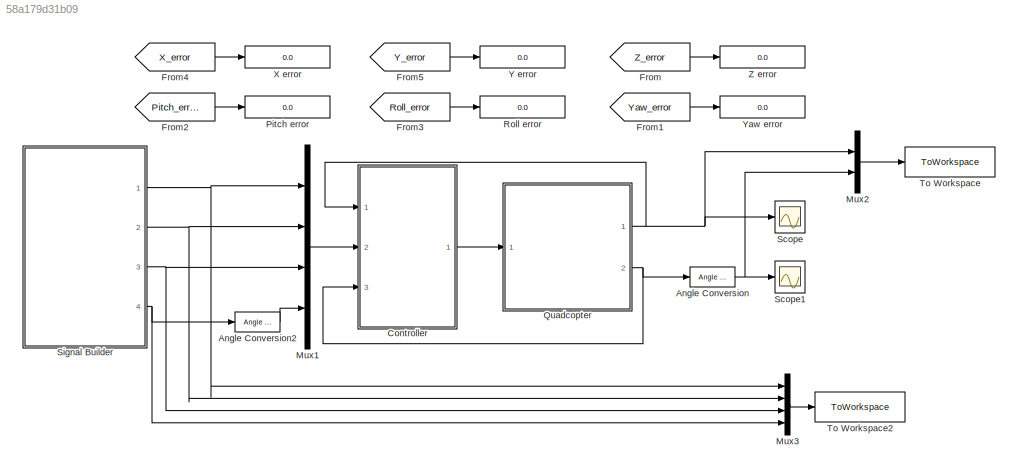
MODEL slx_58a179d31b09
KIND model
CONFIG AbsTol = auto
CONFIG EnableMultiTasking = off
CONFIG FixedStep = 1e-2
CONFIG MaxStep = auto
CONFIG MinStep = auto
CONFIG RelTol = 1e-3
CONFIG SampleTimeConstraint = Unconstrained
CONFIG SolverName = ode5
CONFIG StartTime = 0.0
CONFIG StopTime = 60
BLOCK [Reference] Angle Conversion  REF=aerolibconvert2/Angle Conversion
  Ports = [1, 1]
  SourceBlock = aerolibconvert2/Angle Conversion
  SourceProductBaseCode = AE
  SourceType = Angle Conversion
BLOCK [Reference] Angle Conversion2  REF=aerolibconvert2/Angle Conversion
  Ports = [1, 1]
  SourceBlock = aerolibconvert2/Angle Conversion
  SourceProductBaseCode = AE
  SourceType = Angle Conversion
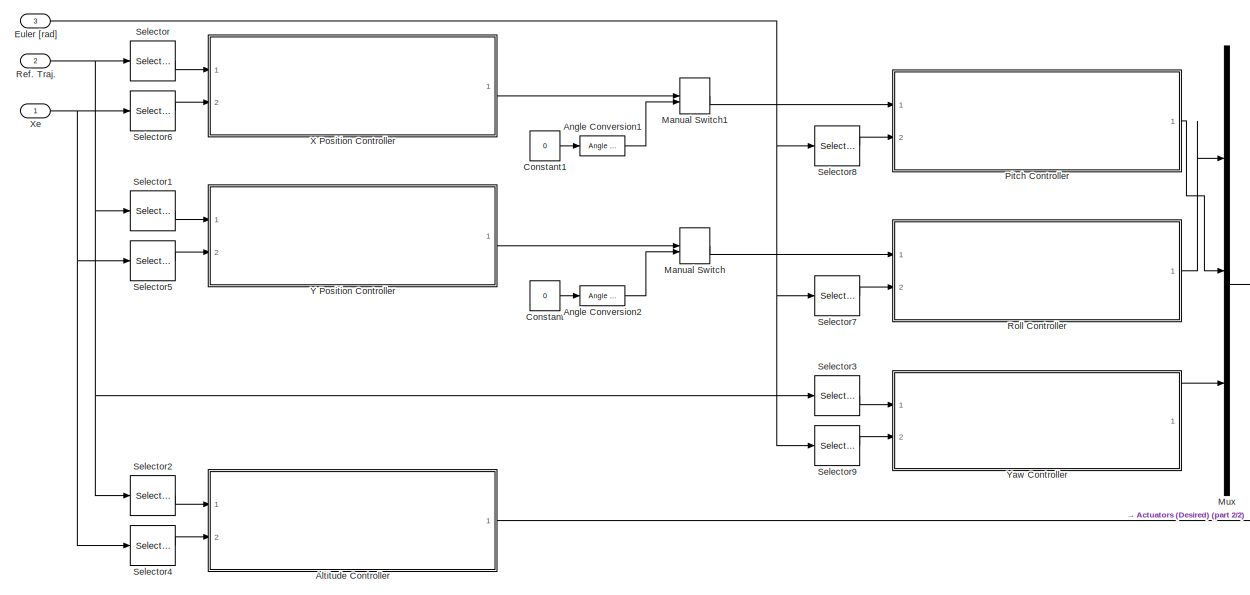
[diagram: Controller - part 1/2, most of the canvas]
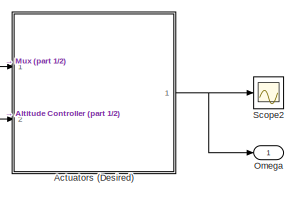
[diagram: Controller - part 2/2, middle right region]
BLOCK [SubSystem] Controller
  Ports = [3, 1]
  RequestExecContextInheritance = off
BLOCK [SubSystem] Controller/Actuators (Desired)
  Ports = [2, 1]
  RequestExecContextInheritance = off
BLOCK [Gain] Controller/Actuators (Desired)/Gain
  Gain = Tinv
  Multiplication = Matrix(K*u)
BLOCK [Saturate] Controller/Actuators (Desired)/Limit Omega (rad//sec) due to Motor Constraints
  LowerLimit = 0
  UpperLimit = Wmax
BLOCK [Mux] Controller/Actuators (Desired)/Mux
  DisplayOption = bar
  Inputs = 2
  Ports = [2, 1]
BLOCK [Outport] Controller/Actuators (Desired)/Omega
  VectorParamsAs1DForOutWhenUnconnected = off
BLOCK [Sqrt] Controller/Actuators (Desired)/Sqrt
BLOCK [Inport] Controller/Actuators (Desired)/Thrust
  Port = 2
BLOCK [Inport] Controller/Actuators (Desired)/Torque
BLOCK [SubSystem] Controller/Altitude Controller
  Ports = [2, 1]
  RequestExecContextInheritance = off
BLOCK [Gain] Controller/Altitude Controller/Gain
  Gain = -1
BLOCK [Goto] Controller/Altitude Controller/Goto
  GotoTag = Z_error
  NameLocation = right
  TagVisibility = global
BLOCK [Saturate] Controller/Altitude Controller/Limit Thrust due to Motor Constraints
  LowerLimit = 0
  UpperLimit = 4*Kf*(Wmax^2)
BLOCK [ManualSwitch] Controller/Altitude Controller/Manual Switch
BLOCK [Mux] Controller/Altitude Controller/Mux
  DisplayOption = bar
  Inputs = 2
  Ports = [2, 1]
BLOCK [RateLimiter] Controller/Altitude Controller/Rate Limiter
  FallingSlewLimit = -2
  RisingSlewLimit = 2
  SampleTimeMode = inherited
BLOCK [Scope] Controller/Altitude Controller/Scope
  Floating = off
  NumInputPorts = 1
  Ports = [1]
  ScopeSpecificationString = Simulink.scopes.TimeScopeBlockCfg('CurrentConfiguration', extmgr.ConfigurationSet(extmgr.Configuration('Core','General UI',true),extmgr.Configuration('Core','Source UI',true),extmgr.Configuration('Sources','WiredSimulink',true,'DataLoggingVariableName','ScopeData2'),extmgr.Configuration('Visuals','Time Domain',true,'SerializedDisplays',{struct('MinYLimReal','-1.25378','MaxYLimReal','11.28405','YLa...<+1448ch>
BLOCK [Sum] Controller/Altitude Controller/Sum
  Inputs = |+-
  Ports = [2, 1]
BLOCK [Sum] Controller/Altitude Controller/Sum1
  Inputs = ++|
  Ports = [2, 1]
BLOCK [Outport] Controller/Altitude Controller/Thrust (Desired)
  VectorParamsAs1DForOutWhenUnconnected = off
BLOCK [TransferFcn] Controller/Altitude Controller/Transfer Fcn
  Denominator = [1 1]
BLOCK [Constant] Controller/Altitude Controller/Weight (Trim Condition)
  NameLocation = left
  Value = mass*g
BLOCK [Inport] Controller/Altitude Controller/Z (Actual)
  NameLocation = top
  Port = 2
BLOCK [Inport] Controller/Altitude Controller/Z (Reference)
BLOCK [SubSystem] Controller/Altitude Controller/Z-Controller (Auto-Tune)
  Commented = on
  Ports = [3, 1]
  RequestExecContextInheritance = off
BLOCK [SubSystem] Controller/Altitude Controller/Z-Controller (Auto-Tune)/Bounds
  Ports = [1, 1]
  RequestExecContextInheritance = off
BLOCK [Inport] Controller/Altitude Controller/Z-Controller (Auto-Tune)/Bounds/Actual Signal
BLOCK [Outport] Controller/Altitude Controller/Z-Controller (Auto-Tune)/Bounds/Boolean
BLOCK [Reference] Controller/Altitude Controller/Z-Controller (Auto-Tune)/Bounds/Compare To Constant  REF=simulink/Logic and Bit
Operations/Compare
To Constant
  Ports = [1, 1]
  SourceBlock = simulink/Logic and Bit\nOperations/Compare\nTo Constant
  SourceProductBaseCode = SL
  SourceType = Compare To Constant
BLOCK [Reference] Controller/Altitude Controller/Z-Controller (Auto-Tune)/Bounds/Compare To Constant1  REF=simulink/Logic and Bit
Operations/Compare
To Constant
  Ports = [1, 1]
  SourceBlock = simulink/Logic and Bit\nOperations/Compare\nTo Constant
  SourceProductBaseCode = SL
  SourceType = Compare To Constant
BLOCK [Logic] Controller/Altitude Controller/Z-Controller (Auto-Tune)/Bounds/Logical Operator
  AllPortsSameDT = off
  Operator = OR
  OutDataTypeStr = boolean
  Ports = [2, 1]
BLOCK [Outport] Controller/Altitude Controller/Z-Controller (Auto-Tune)/Controller Output
BLOCK [Display] Controller/Altitude Controller/Z-Controller (Auto-Tune)/D
  Decimation = 1
  NameLocation = top
  Ports = [1]
BLOCK [Demux] Controller/Altitude Controller/Z-Controller (Auto-Tune)/Demux
  Outputs = 3
  Ports = [1, 3]
BLOCK [Derivative] Controller/Altitude Controller/Z-Controller (Auto-Tune)/Derivative
BLOCK [Inport] Controller/Altitude Controller/Z-Controller (Auto-Tune)/Error
BLOCK [Display] Controller/Altitude Controller/Z-Controller (Auto-Tune)/I
  Decimation = 1
  NameLocation = top
  Ports = [1]
BLOCK [Integrator] Controller/Altitude Controller/Z-Controller (Auto-Tune)/Integrator
  Ports = [1, 1]
BLOCK [Mux] Controller/Altitude Controller/Z-Controller (Auto-Tune)/Mux
  DisplayOption = bar
  Inputs = 2
  Ports = [2, 1]
BLOCK [SubSystem] Controller/Altitude Controller/Z-Controller (Auto-Tune)/Obs
  Ports = [1, 1]
  RequestExecContextInheritance = off
BLOCK [Reference] Controller/Altitude Controller/Z-Controller (Auto-Tune)/Obs/Discrete Derivative  REF=simulink/Discrete/Discrete Derivative
  Ports = [1, 1]
  SourceBlock = simulink/Discrete/Discrete Derivative
  SourceProductBaseCode = SL
  SourceType = Discrete Derivative
BLOCK [DiscreteIntegrator] Controller/Altitude Controller/Z-Controller (Auto-Tune)/Obs/Discrete-Time Integrator
  ICPrevOutput = DiscIntNeverNeededParam
  ICPrevScaledInput = DiscIntNeverNeededParam
  InitialConditionSetting = Auto
  Ports = [1, 1]
  SampleTime = -1
BLOCK [Inport] Controller/Altitude Controller/Z-Controller (Auto-Tune)/Obs/Error
BLOCK [Mux] Controller/Altitude Controller/Z-Controller (Auto-Tune)/Obs/Mux
  DisplayOption = bar
  Inputs = 3
  Ports = [3, 1]
BLOCK [Outport] Controller/Altitude Controller/Z-Controller (Auto-Tune)/Obs/Observations
BLOCK [Display] Controller/Altitude Controller/Z-Controller (Auto-Tune)/P
  Decimation = 1
  NameLocation = top
  Ports = [1]
BLOCK [Product] Controller/Altitude Controller/Z-Controller (Auto-Tune)/Product
  Ports = [2, 1]
BLOCK [Product] Controller/Altitude Controller/Z-Controller (Auto-Tune)/Product1
  Ports = [2, 1]
BLOCK [Product] Controller/Altitude Controller/Z-Controller (Auto-Tune)/Product2
  Ports = [2, 1]
BLOCK [Reference] Controller/Altitude Controller/Z-Controller (Auto-Tune)/RL Agent  REF=rllib/RL Agent
  Ports = [3, 1]
  SourceBlock = rllib/RL Agent
  SourceProductBaseCode = RL
  SourceType = RL Agent
BLOCK [SubSystem] Controller/Altitude Controller/Z-Controller (Auto-Tune)/Reward
  Ports = [3, 1]
  RequestExecContextInheritance = off
BLOCK [Inport] Controller/Altitude Controller/Z-Controller (Auto-Tune)/Reward/Boolean
  Port = 2
BLOCK [Reference] Controller/Altitude Controller/Z-Controller (Auto-Tune)/Reward/Compare To Constant  REF=simulink/Logic and Bit
Operations/Compare
To Constant
  Ports = [1, 1]
  SourceBlock = simulink/Logic and Bit\nOperations/Compare\nTo Constant
  SourceProductBaseCode = SL
  SourceType = Compare To Constant
BLOCK [Constant] Controller/Altitude Controller/Z-Controller (Auto-Tune)/Reward/Constant
  Value = -1
BLOCK [Inport] Controller/Altitude Controller/Z-Controller (Auto-Tune)/Reward/Delayed Controller Output
  Port = 3
BLOCK [Inport] Controller/Altitude Controller/Z-Controller (Auto-Tune)/Reward/Error
BLOCK [Gain] Controller/Altitude Controller/Z-Controller (Auto-Tune)/Reward/Gain1
  Gain = -50
BLOCK [Gain] Controller/Altitude Controller/Z-Controller (Auto-Tune)/Reward/Gain3
  Gain = -10
BLOCK [Gain] Controller/Altitude Controller/Z-Controller (Auto-Tune)/Reward/Gain4
  Gain = -0.5
BLOCK [Gain] Controller/Altitude Controller/Z-Controller (Auto-Tune)/Reward/Gain5
  Gain = 25
BLOCK [Outport] Controller/Altitude Controller/Z-Controller (Auto-Tune)/Reward/Reward
BLOCK [Math] Controller/Altitude Controller/Z-Controller (Auto-Tune)/Reward/Square
  Operator = square
  Ports = [1, 1]
BLOCK [Math] Controller/Altitude Controller/Z-Controller (Auto-Tune)/Reward/Square1
  Operator = square
  Ports = [1, 1]
BLOCK [Sum] Controller/Altitude Controller/Z-Controller (Auto-Tune)/Reward/Sum
  IconShape = rectangular
  Inputs = +++++
  Ports = [5, 1]
BLOCK [Scope] Controller/Altitude Controller/Z-Controller (Auto-Tune)/Scope
  Floating = off
  NumInputPorts = 1
  Ports = [1]
  ScopeSpecificationString = Simulink.scopes.TimeScopeBlockCfg('CurrentConfiguration', extmgr.ConfigurationSet(extmgr.Configuration('Core','General UI',true),extmgr.Configuration('Core','Source UI',true),extmgr.Configuration('Sources','WiredSimulink',true,'DataLoggingVariableName','ScopeData1'),extmgr.Configuration('Visuals','Time Domain',true,'SerializedDisplays',{struct('MinYLimReal','-15','MaxYLimReal','0','YLabelReal','',...<+1419ch>
BLOCK [Sum] Controller/Altitude Controller/Z-Controller (Auto-Tune)/Sum2
  IconShape = rectangular
  Inputs = +++
  Ports = [3, 1]
BLOCK [UnitDelay] Controller/Altitude Controller/Z-Controller (Auto-Tune)/Unit Delay
  HasFrameUpgradeWarning = on
  NameLocation = top
  SampleTime = -1
BLOCK [Inport] Controller/Altitude Controller/Z-Controller (Auto-Tune)/Z (Actual)
  Port = 2
BLOCK [Inport] Controller/Altitude Controller/Z-Controller (Auto-Tune)/Z (Reference)
  Port = 3
BLOCK [SubSystem] Controller/Altitude Controller/Z-Controller (Manual)
  Ports = [1, 1]
  RequestExecContextInheritance = off
BLOCK [Outport] Controller/Altitude Controller/Z-Controller (Manual)/Controller Output
BLOCK [Constant] Controller/Altitude Controller/Z-Controller (Manual)/D
  NameLocation = left
  Value = -2.617
BLOCK [Derivative] Controller/Altitude Controller/Z-Controller (Manual)/Derivative
BLOCK [Inport] Controller/Altitude Controller/Z-Controller (Manual)/Error
BLOCK [Constant] Controller/Altitude Controller/Z-Controller (Manual)/I
  NameLocation = left
  Value = 0
BLOCK [Integrator] Controller/Altitude Controller/Z-Controller (Manual)/Integrator
  Ports = [1, 1]
BLOCK [Constant] Controller/Altitude Controller/Z-Controller (Manual)/P
  NameLocation = left
  Value = -3.028
BLOCK [Product] Controller/Altitude Controller/Z-Controller (Manual)/Product
  Ports = [2, 1]
BLOCK [Product] Controller/Altitude Controller/Z-Controller (Manual)/Product1
  Ports = [2, 1]
BLOCK [Product] Controller/Altitude Controller/Z-Controller (Manual)/Product2
  Ports = [2, 1]
BLOCK [Sum] Controller/Altitude Controller/Z-Controller (Manual)/Sum2
  IconShape = rectangular
  Inputs = +++
  Ports = [3, 1]
BLOCK [Reference] Controller/Angle Conversion1  REF=aerolibconvert2/Angle Conversion
  Ports = [1, 1]
  SourceBlock = aerolibconvert2/Angle Conversion
  SourceProductBaseCode = AE
  SourceType = Angle Conversion
BLOCK [Reference] Controller/Angle Conversion2  REF=aerolibconvert2/Angle Conversion
  Ports = [1, 1]
  SourceBlock = aerolibconvert2/Angle Conversion
  SourceProductBaseCode = AE
  SourceType = Angle Conversion
BLOCK [Constant] Controller/Constant
  Value = 0
BLOCK [Constant] Controller/Constant1
  Value = 0
BLOCK [Inport] Controller/Euler [rad]
  Port = 3
BLOCK [ManualSwitch] Controller/Manual Switch
BLOCK [ManualSwitch] Controller/Manual Switch1
BLOCK [Mux] Controller/Mux
  DisplayOption = bar
  Inputs = 3
  Ports = [3, 1]
BLOCK [Outport] Controller/Omega
  VectorParamsAs1DForOutWhenUnconnected = off
BLOCK [SubSystem] Controller/Pitch Controller
  Ports = [2, 1]
  RequestExecContextInheritance = off
BLOCK [Reference] Controller/Pitch Controller/Angle Conversion  REF=aerolibconvert2/Angle Conversion
  Ports = [1, 1]
  SourceBlock = aerolibconvert2/Angle Conversion
  SourceProductBaseCode = AE
  SourceType = Angle Conversion
BLOCK [Goto] Controller/Pitch Controller/Goto1
  GotoTag = Pitch_error
  NameLocation = right
  TagVisibility = global
BLOCK [Saturate] Controller/Pitch Controller/Limit Pitch Torque due to Motor Constraints
  LowerLimit = -(Kf*(maxRPM*(2*pi)/60)^2)*L
  UpperLimit = (Kf*(maxRPM*(2*pi)/60)^2)*L
BLOCK [Mux] Controller/Pitch Controller/Mux
  DisplayOption = bar
  Inputs = 2
  Ports = [2, 1]
BLOCK [SubSystem] Controller/Pitch Controller/Pitch-Controller
  Ports = [1, 1]
  RequestExecContextInheritance = off
BLOCK [Outport] Controller/Pitch Controller/Pitch-Controller/Controller Output
BLOCK [Constant] Controller/Pitch Controller/Pitch-Controller/D
  NameLocation = left
  Value = 0.003858
BLOCK [Derivative] Controller/Pitch Controller/Pitch-Controller/Derivative
BLOCK [Inport] Controller/Pitch Controller/Pitch-Controller/Error
BLOCK [Constant] Controller/Pitch Controller/Pitch-Controller/I
  NameLocation = left
  Value = 0.0006933
BLOCK [Integrator] Controller/Pitch Controller/Pitch-Controller/Integrator
  Ports = [1, 1]
BLOCK [Constant] Controller/Pitch Controller/Pitch-Controller/P
  NameLocation = left
  Value = 0.006892
BLOCK [Product] Controller/Pitch Controller/Pitch-Controller/Product
  Ports = [2, 1]
BLOCK [Product] Controller/Pitch Controller/Pitch-Controller/Product1
  Ports = [2, 1]
BLOCK [Product] Controller/Pitch Controller/Pitch-Controller/Product2
  Ports = [2, 1]
BLOCK [Sum] Controller/Pitch Controller/Pitch-Controller/Sum2
  IconShape = rectangular
  Inputs = +++
  Ports = [3, 1]
BLOCK [Scope] Controller/Pitch Controller/Scope
  Floating = off
  NumInputPorts = 1
  Ports = [1]
  ScopeSpecificationString = Simulink.scopes.TimeScopeBlockCfg('CurrentConfiguration', extmgr.ConfigurationSet(extmgr.Configuration('Core','General UI',true),extmgr.Configuration('Core','Source UI',true),extmgr.Configuration('Sources','WiredSimulink',true,'DataLoggingVariableName','ScopeData4'),extmgr.Configuration('Visuals','Time Domain',true,'SerializedDisplays',{struct('MinYLimReal','-31.56707','MaxYLimReal','31.596','YLab...<+1471ch>
BLOCK [Sum] Controller/Pitch Controller/Sum2
  Inputs = |+-
  Ports = [2, 1]
BLOCK [Inport] Controller/Pitch Controller/Theta (Actual)
  Port = 2
BLOCK [Inport] Controller/Pitch Controller/Theta (Reference)
BLOCK [Outport] Controller/Pitch Controller/Torque Y (Desired)
  VectorParamsAs1DForOutWhenUnconnected = off
BLOCK [Inport] Controller/Ref. Traj. 
  Port = 2
BLOCK [SubSystem] Controller/Roll Controller
  Ports = [2, 1]
  RequestExecContextInheritance = off
BLOCK [Reference] Controller/Roll Controller/Angle Conversion  REF=aerolibconvert2/Angle Conversion
  Ports = [1, 1]
  SourceBlock = aerolibconvert2/Angle Conversion
  SourceProductBaseCode = AE
  SourceType = Angle Conversion
BLOCK [Goto] Controller/Roll Controller/Goto1
  GotoTag = Roll_error
  NameLocation = right
  TagVisibility = global
BLOCK [Saturate] Controller/Roll Controller/Limit Roll Torque due to Motor Constraints
  LowerLimit = -Kf*(Wmax^2)*L
  UpperLimit = Kf*(Wmax^2)*L
BLOCK [ManualSwitch] Controller/Roll Controller/Manual Switch
BLOCK [Mux] Controller/Roll Controller/Mux
  DisplayOption = bar
  Inputs = 2
  Ports = [2, 1]
BLOCK [Inport] Controller/Roll Controller/Phi (Actual)
  NameLocation = top
  Port = 2
BLOCK [Inport] Controller/Roll Controller/Phi (Reference)
BLOCK [SubSystem] Controller/Roll Controller/Roll-Controller
  Ports = [1, 1]
  RequestExecContextInheritance = off
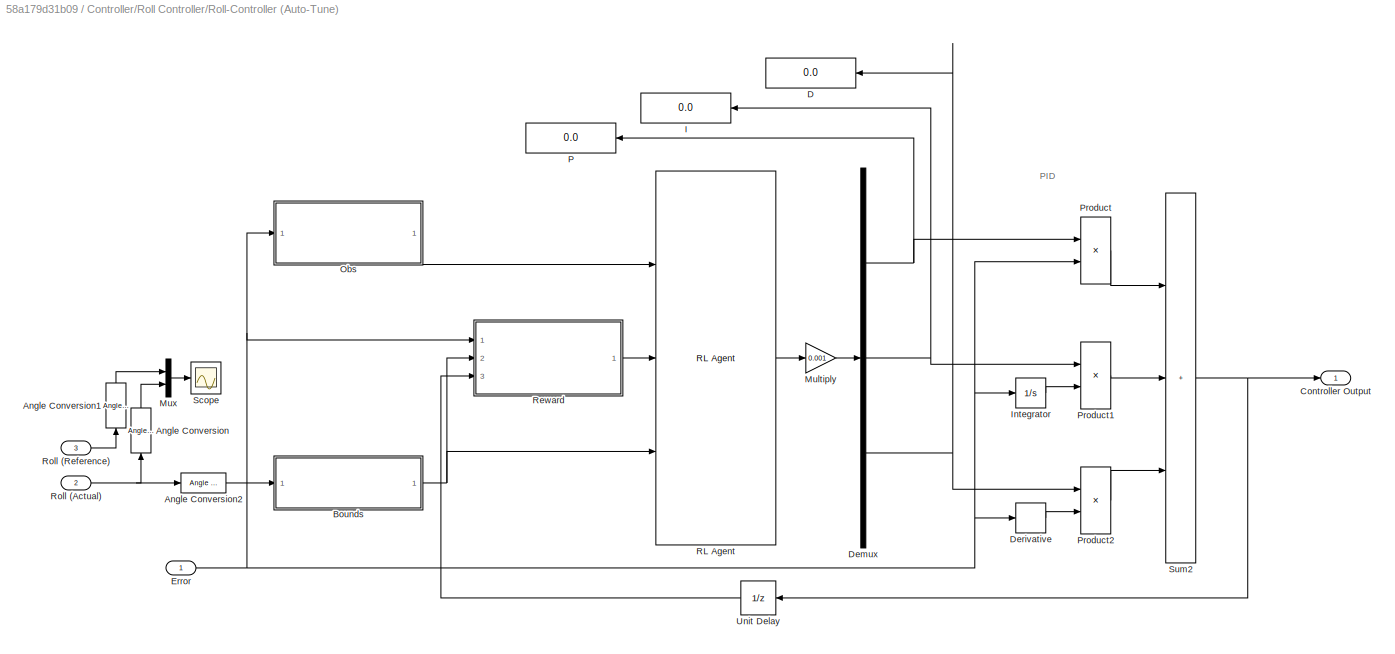
BLOCK [SubSystem] Controller/Roll Controller/Roll-Controller (Auto-Tune)
  Commented = on
  Ports = [3, 1]
  RequestExecContextInheritance = off
BLOCK [Reference] Controller/Roll Controller/Roll-Controller (Auto-Tune)/Angle Conversion  REF=aerolibconvert2/Angle Conversion
  NameLocation = right
  Ports = [1, 1]
  SourceBlock = aerolibconvert2/Angle Conversion
  SourceProductBaseCode = AE
  SourceType = Angle Conversion
BLOCK [Reference] Controller/Roll Controller/Roll-Controller (Auto-Tune)/Angle Conversion1  REF=aerolibconvert2/Angle Conversion
  NameLocation = right
  Ports = [1, 1]
  SourceBlock = aerolibconvert2/Angle Conversion
  SourceProductBaseCode = AE
  SourceType = Angle Conversion
BLOCK [Reference] Controller/Roll Controller/Roll-Controller (Auto-Tune)/Angle Conversion2  REF=aerolibconvert2/Angle Conversion
  Ports = [1, 1]
  SourceBlock = aerolibconvert2/Angle Conversion
  SourceProductBaseCode = AE
  SourceType = Angle Conversion
BLOCK [SubSystem] Controller/Roll Controller/Roll-Controller (Auto-Tune)/Bounds
  Ports = [1, 1]
  RequestExecContextInheritance = off
BLOCK [Inport] Controller/Roll Controller/Roll-Controller (Auto-Tune)/Bounds/Actual Signal
BLOCK [Outport] Controller/Roll Controller/Roll-Controller (Auto-Tune)/Bounds/Boolean
BLOCK [Reference] Controller/Roll Controller/Roll-Controller (Auto-Tune)/Bounds/Compare To Constant  REF=simulink/Logic and Bit
Operations/Compare
To Constant
  Ports = [1, 1]
  SourceBlock = simulink/Logic and Bit\nOperations/Compare\nTo Constant
  SourceProductBaseCode = SL
  SourceType = Compare To Constant
BLOCK [Reference] Controller/Roll Controller/Roll-Controller (Auto-Tune)/Bounds/Compare To Constant1  REF=simulink/Logic and Bit
Operations/Compare
To Constant
  Ports = [1, 1]
  SourceBlock = simulink/Logic and Bit\nOperations/Compare\nTo Constant
  SourceProductBaseCode = SL
  SourceType = Compare To Constant
BLOCK [Logic] Controller/Roll Controller/Roll-Controller (Auto-Tune)/Bounds/Logical Operator
  AllPortsSameDT = off
  Operator = OR
  OutDataTypeStr = boolean
  Ports = [2, 1]
BLOCK [Outport] Controller/Roll Controller/Roll-Controller (Auto-Tune)/Controller Output
BLOCK [Display] Controller/Roll Controller/Roll-Controller (Auto-Tune)/D
  Decimation = 1
  NameLocation = top
  Ports = [1]
BLOCK [Demux] Controller/Roll Controller/Roll-Controller (Auto-Tune)/Demux
  Outputs = 3
  Ports = [1, 3]
BLOCK [Derivative] Controller/Roll Controller/Roll-Controller (Auto-Tune)/Derivative
BLOCK [Inport] Controller/Roll Controller/Roll-Controller (Auto-Tune)/Error
BLOCK [Display] Controller/Roll Controller/Roll-Controller (Auto-Tune)/I
  Decimation = 1
  NameLocation = top
  Ports = [1]
BLOCK [Integrator] Controller/Roll Controller/Roll-Controller (Auto-Tune)/Integrator
  Ports = [1, 1]
BLOCK [Gain] Controller/Roll Controller/Roll-Controller (Auto-Tune)/Multiply
  Gain = 0.001
BLOCK [Mux] Controller/Roll Controller/Roll-Controller (Auto-Tune)/Mux
  DisplayOption = bar
  Inputs = 2
  Ports = [2, 1]
BLOCK [SubSystem] Controller/Roll Controller/Roll-Controller (Auto-Tune)/Obs
  Ports = [1, 1]
  RequestExecContextInheritance = off
BLOCK [Reference] Controller/Roll Controller/Roll-Controller (Auto-Tune)/Obs/Discrete Derivative  REF=simulink/Discrete/Discrete Derivative
  Ports = [1, 1]
  SourceBlock = simulink/Discrete/Discrete Derivative
  SourceProductBaseCode = SL
  SourceType = Discrete Derivative
BLOCK [DiscreteIntegrator] Controller/Roll Controller/Roll-Controller (Auto-Tune)/Obs/Discrete-Time Integrator
  ICPrevOutput = DiscIntNeverNeededParam
  ICPrevScaledInput = DiscIntNeverNeededParam
  InitialConditionSetting = Auto
  Ports = [1, 1]
  SampleTime = -1
BLOCK [Inport] Controller/Roll Controller/Roll-Controller (Auto-Tune)/Obs/Error
BLOCK [Mux] Controller/Roll Controller/Roll-Controller (Auto-Tune)/Obs/Mux
  DisplayOption = bar
  Inputs = 3
  Ports = [3, 1]
BLOCK [Outport] Controller/Roll Controller/Roll-Controller (Auto-Tune)/Obs/Observations
BLOCK [Display] Controller/Roll Controller/Roll-Controller (Auto-Tune)/P
  Decimation = 1
  NameLocation = top
  Ports = [1]
BLOCK [Product] Controller/Roll Controller/Roll-Controller (Auto-Tune)/Product
  Ports = [2, 1]
BLOCK [Product] Controller/Roll Controller/Roll-Controller (Auto-Tune)/Product1
  Ports = [2, 1]
BLOCK [Product] Controller/Roll Controller/Roll-Controller (Auto-Tune)/Product2
  Ports = [2, 1]
BLOCK [Reference] Controller/Roll Controller/Roll-Controller (Auto-Tune)/RL Agent  REF=rllib/RL Agent
  Ports = [3, 1]
  SourceBlock = rllib/RL Agent
  SourceProductBaseCode = RL
  SourceType = RL Agent
BLOCK [SubSystem] Controller/Roll Controller/Roll-Controller (Auto-Tune)/Reward
  Ports = [3, 1]
  RequestExecContextInheritance = off
BLOCK [Inport] Controller/Roll Controller/Roll-Controller (Auto-Tune)/Reward/Boolean
  Port = 2
BLOCK [Reference] Controller/Roll Controller/Roll-Controller (Auto-Tune)/Reward/Compare To Constant  REF=simulink/Logic and Bit
Operations/Compare
To Constant
  Ports = [1, 1]
  SourceBlock = simulink/Logic and Bit\nOperations/Compare\nTo Constant
  SourceProductBaseCode = SL
  SourceType = Compare To Constant
BLOCK [Constant] Controller/Roll Controller/Roll-Controller (Auto-Tune)/Reward/Constant
  Value = -1
BLOCK [Inport] Controller/Roll Controller/Roll-Controller (Auto-Tune)/Reward/Delayed Controller Output
  Port = 3
BLOCK [Inport] Controller/Roll Controller/Roll-Controller (Auto-Tune)/Reward/Error
BLOCK [Gain] Controller/Roll Controller/Roll-Controller (Auto-Tune)/Reward/Gain1
  Gain = -50
BLOCK [Gain] Controller/Roll Controller/Roll-Controller (Auto-Tune)/Reward/Gain3
  Gain = -10
BLOCK [Gain] Controller/Roll Controller/Roll-Controller (Auto-Tune)/Reward/Gain4
  Gain = -0.5
BLOCK [Gain] Controller/Roll Controller/Roll-Controller (Auto-Tune)/Reward/Gain5
  Gain = 25
BLOCK [Outport] Controller/Roll Controller/Roll-Controller (Auto-Tune)/Reward/Reward
BLOCK [Math] Controller/Roll Controller/Roll-Controller (Auto-Tune)/Reward/Square
  Operator = square
  Ports = [1, 1]
BLOCK [Math] Controller/Roll Controller/Roll-Controller (Auto-Tune)/Reward/Square1
  Operator = square
  Ports = [1, 1]
BLOCK [Sum] Controller/Roll Controller/Roll-Controller (Auto-Tune)/Reward/Sum
  IconShape = rectangular
  Inputs = +++++
  Ports = [5, 1]
BLOCK [Inport] Controller/Roll Controller/Roll-Controller (Auto-Tune)/Roll (Actual)
  Port = 2
BLOCK [Inport] Controller/Roll Controller/Roll-Controller (Auto-Tune)/Roll (Reference)
  Port = 3
BLOCK [Scope] Controller/Roll Controller/Roll-Controller (Auto-Tune)/Scope
  Floating = off
  NumInputPorts = 1
  Ports = [1]
  ScopeSpecificationString = Simulink.scopes.TimeScopeBlockCfg('CurrentConfiguration', extmgr.ConfigurationSet(extmgr.Configuration('Core','General UI',true),extmgr.Configuration('Core','Source UI',true),extmgr.Configuration('Sources','WiredSimulink',true,'DataLoggingVariableName','ScopeData1'),extmgr.Configuration('Visuals','Time Domain',true,'SerializedDisplays',{struct('MinYLimReal','-2.85517','MaxYLimReal','25.69653','YLa...<+1498ch>
BLOCK [Sum] Controller/Roll Controller/Roll-Controller (Auto-Tune)/Sum2
  IconShape = rectangular
  Inputs = +++
  Ports = [3, 1]
BLOCK [UnitDelay] Controller/Roll Controller/Roll-Controller (Auto-Tune)/Unit Delay
  HasFrameUpgradeWarning = on
  NameLocation = top
  SampleTime = -1
BLOCK [Outport] Controller/Roll Controller/Roll-Controller/Controller Output
BLOCK [Constant] Controller/Roll Controller/Roll-Controller/D
  NameLocation = left
  Value = 0.003858
BLOCK [Derivative] Controller/Roll Controller/Roll-Controller/Derivative
BLOCK [Inport] Controller/Roll Controller/Roll-Controller/Error
BLOCK [Constant] Controller/Roll Controller/Roll-Controller/I
  NameLocation = left
  Value = 0.0006933
BLOCK [Integrator] Controller/Roll Controller/Roll-Controller/Integrator
  Ports = [1, 1]
BLOCK [Constant] Controller/Roll Controller/Roll-Controller/P
  NameLocation = left
  Value = 0.006829
BLOCK [Product] Controller/Roll Controller/Roll-Controller/Product
  Ports = [2, 1]
BLOCK [Product] Controller/Roll Controller/Roll-Controller/Product1
  Ports = [2, 1]
BLOCK [Product] Controller/Roll Controller/Roll-Controller/Product2
  Ports = [2, 1]
BLOCK [Sum] Controller/Roll Controller/Roll-Controller/Sum2
  IconShape = rectangular
  Inputs = +++
  Ports = [3, 1]
BLOCK [Scope] Controller/Roll Controller/Scope
  Floating = off
  NumInputPorts = 1
  Ports = [1]
  ScopeSpecificationString = Simulink.scopes.TimeScopeBlockCfg('CurrentConfiguration', extmgr.ConfigurationSet(extmgr.Configuration('Core','General UI',true),extmgr.Configuration('Core','Source UI',true),extmgr.Configuration('Sources','WiredSimulink',true,'DataLoggingVariableName','ScopeData1'),extmgr.Configuration('Visuals','Time Domain',true,'SerializedDisplays',{struct('MinYLimReal','-1.35591','MaxYLimReal','12.20316','YLa...<+1472ch>
BLOCK [Sum] Controller/Roll Controller/Sum2
  Inputs = |+-
  Ports = [2, 1]
BLOCK [Outport] Controller/Roll Controller/Torque X (Desired)
  VectorParamsAs1DForOutWhenUnconnected = off
BLOCK [Scope] Controller/Scope2
  Floating = off
  NumInputPorts = 1
  Ports = [1]
  ScopeSpecificationString = Simulink.scopes.TimeScopeBlockCfg('CurrentConfiguration', extmgr.ConfigurationSet(extmgr.Configuration('Core','General UI',true),extmgr.Configuration('Core','Source UI',true),extmgr.Configuration('Sources','WiredSimulink',true,'DataLoggingVariableName','ScopeData3'),extmgr.Configuration('Visuals','Time Domain',true,'SerializedDisplays',{struct('MinYLimReal','1504.69337','MaxYLimReal','2083.49339',...<+1545ch>
BLOCK [Selector] Controller/Selector
  IndexOptions = Index vector (dialog)
  Indices = [1]
  InputPortWidth = 4
  OutputSizes = 1
  Ports = [1, 1]
BLOCK [Selector] Controller/Selector1
  IndexOptions = Index vector (dialog)
  Indices = [2]
  InputPortWidth = 4
  OutputSizes = 1
  Ports = [1, 1]
BLOCK [Selector] Controller/Selector2
  IndexOptions = Index vector (dialog)
  Indices = [3]
  InputPortWidth = 4
  OutputSizes = 1
  Ports = [1, 1]
BLOCK [Selector] Controller/Selector3
  IndexOptions = Index vector (dialog)
  Indices = [4]
  InputPortWidth = 4
  OutputSizes = 1
  Ports = [1, 1]
BLOCK [Selector] Controller/Selector4
  IndexOptions = Index vector (dialog)
  Indices = [3]
  InputPortWidth = 3
  OutputSizes = 1
  Ports = [1, 1]
BLOCK [Selector] Controller/Selector5
  IndexOptions = Index vector (dialog)
  Indices = [2]
  InputPortWidth = 3
  OutputSizes = 1
  Ports = [1, 1]
BLOCK [Selector] Controller/Selector6
  IndexOptions = Index vector (dialog)
  Indices = [1]
  InputPortWidth = 3
  OutputSizes = 1
  Ports = [1, 1]
BLOCK [Selector] Controller/Selector7
  IndexOptions = Index vector (dialog)
  Indices = [1]
  InputPortWidth = 3
  OutputSizes = 1
  Ports = [1, 1]
BLOCK [Selector] Controller/Selector8
  IndexOptions = Index vector (dialog)
  Indices = [2]
  InputPortWidth = 3
  OutputSizes = 1
  Ports = [1, 1]
BLOCK [Selector] Controller/Selector9
  IndexOptions = Index vector (dialog)
  Indices = [3]
  InputPortWidth = 3
  OutputSizes = 1
  Ports = [1, 1]
BLOCK [SubSystem] Controller/X Position Controller
  Ports = [2, 1]
  RequestExecContextInheritance = off
BLOCK [Goto] Controller/X Position Controller/Goto1
  GotoTag = X_error
  NameLocation = right
  TagVisibility = global
BLOCK [Saturate] Controller/X Position Controller/Limit Pitch Ref
  LowerLimit = -25*pi/180
  UpperLimit = 25*pi/180
BLOCK [Mux] Controller/X Position Controller/Mux
  DisplayOption = bar
  Inputs = 2
  Ports = [2, 1]
BLOCK [Outport] Controller/X Position Controller/Pitch [rad] (Desired)
  VectorParamsAs1DForOutWhenUnconnected = off
BLOCK [RateLimiter] Controller/X Position Controller/Rate Limiter
  FallingSlewLimit = -3
  RisingSlewLimit = 3
  SampleTimeMode = inherited
BLOCK [Scope] Controller/X Position Controller/Scope
  Floating = off
  NumInputPorts = 1
  Ports = [1]
  ScopeSpecificationString = Simulink.scopes.TimeScopeBlockCfg('CurrentConfiguration', extmgr.ConfigurationSet(extmgr.Configuration('Core','General UI',true),extmgr.Configuration('Core','Source UI',true),extmgr.Configuration('Sources','WiredSimulink',true,'DataLoggingVariableName','ScopeData4'),extmgr.Configuration('Visuals','Time Domain',true,'SerializedDisplays',{struct('MinYLimReal','-1.26786','MaxYLimReal','11.41076','YLa...<+1458ch>
BLOCK [Sum] Controller/X Position Controller/Sum2
  Inputs = |+-
  Ports = [2, 1]
BLOCK [TransferFcn] Controller/X Position Controller/Transfer Fcn
  Denominator = [1 2]
  Numerator = [2]
BLOCK [Inport] Controller/X Position Controller/X (Actual)
  Port = 2
BLOCK [Inport] Controller/X Position Controller/X (Reference)
BLOCK [SubSystem] Controller/X Position Controller/X-Controller
  Ports = [1, 1]
  RequestExecContextInheritance = off
BLOCK [Outport] Controller/X Position Controller/X-Controller/Controller Output
BLOCK [Constant] Controller/X Position Controller/X-Controller/D
  NameLocation = left
  Value = -.3552
BLOCK [Derivative] Controller/X Position Controller/X-Controller/Derivative
BLOCK [Inport] Controller/X Position Controller/X-Controller/Error
BLOCK [Constant] Controller/X Position Controller/X-Controller/I
  NameLocation = left
  Value = -.00617
BLOCK [Integrator] Controller/X Position Controller/X-Controller/Integrator
  Ports = [1, 1]
BLOCK [Constant] Controller/X Position Controller/X-Controller/P
  NameLocation = left
  Value = -2.17
BLOCK [Product] Controller/X Position Controller/X-Controller/Product
  Ports = [2, 1]
BLOCK [Product] Controller/X Position Controller/X-Controller/Product1
  Ports = [2, 1]
BLOCK [Product] Controller/X Position Controller/X-Controller/Product2
  Ports = [2, 1]
BLOCK [Sum] Controller/X Position Controller/X-Controller/Sum2
  IconShape = rectangular
  Inputs = +++
  Ports = [3, 1]
BLOCK [Inport] Controller/Xe
BLOCK [SubSystem] Controller/Y Position Controller
  Ports = [2, 1]
  RequestExecContextInheritance = off
BLOCK [Goto] Controller/Y Position Controller/Goto1
  GotoTag = Y_error
  NameLocation = right
  TagVisibility = global
BLOCK [Saturate] Controller/Y Position Controller/Limit Roll Ref
  LowerLimit = -25*pi/180
  UpperLimit = 25*pi/180
BLOCK [ManualSwitch] Controller/Y Position Controller/Manual Switch
BLOCK [Mux] Controller/Y Position Controller/Mux
  DisplayOption = bar
  Inputs = 2
  Ports = [2, 1]
BLOCK [RateLimiter] Controller/Y Position Controller/Rate Limiter
  FallingSlewLimit = -3
  RisingSlewLimit = 3
  SampleTimeMode = inherited
BLOCK [Outport] Controller/Y Position Controller/Roll [rad] (Desired)
  VectorParamsAs1DForOutWhenUnconnected = off
BLOCK [Scope] Controller/Y Position Controller/Scope
  Floating = off
  NumInputPorts = 1
  Ports = [1]
  ScopeSpecificationString = Simulink.scopes.TimeScopeBlockCfg('CurrentConfiguration', extmgr.ConfigurationSet(extmgr.Configuration('Core','General UI',true),extmgr.Configuration('Core','Source UI',true),extmgr.Configuration('Sources','WiredSimulink',true,'DataLoggingVariableName','ScopeData1'),extmgr.Configuration('Visuals','Time Domain',true,'SerializedDisplays',{struct('MinYLimReal','-11.47369','MaxYLimReal','3.26319','YLa...<+1458ch>
BLOCK [Sum] Controller/Y Position Controller/Sum2
  Inputs = |+-
  Ports = [2, 1]
BLOCK [TransferFcn] Controller/Y Position Controller/Transfer Fcn
  Denominator = [1 2]
  Numerator = [2]
BLOCK [Inport] Controller/Y Position Controller/Y (Actual)
  NameLocation = top
  Port = 2
BLOCK [Inport] Controller/Y Position Controller/Y (Reference)
BLOCK [SubSystem] Controller/Y Position Controller/Y-Controller
  Ports = [1, 1]
  RequestExecContextInheritance = off
BLOCK [SubSystem] Controller/Y Position Controller/Y-Controller (Auto-Tune)
  Commented = on
  Ports = [3, 1]
  RequestExecContextInheritance = off
BLOCK [SubSystem] Controller/Y Position Controller/Y-Controller (Auto-Tune)/Bounds
  Ports = [1, 1]
  RequestExecContextInheritance = off
BLOCK [Inport] Controller/Y Position Controller/Y-Controller (Auto-Tune)/Bounds/Actual Signal
BLOCK [Outport] Controller/Y Position Controller/Y-Controller (Auto-Tune)/Bounds/Boolean
BLOCK [Reference] Controller/Y Position Controller/Y-Controller (Auto-Tune)/Bounds/Compare To Constant  REF=simulink/Logic and Bit
Operations/Compare
To Constant
  Ports = [1, 1]
  SourceBlock = simulink/Logic and Bit\nOperations/Compare\nTo Constant
  SourceProductBaseCode = SL
  SourceType = Compare To Constant
BLOCK [Reference] Controller/Y Position Controller/Y-Controller (Auto-Tune)/Bounds/Compare To Constant1  REF=simulink/Logic and Bit
Operations/Compare
To Constant
  Ports = [1, 1]
  SourceBlock = simulink/Logic and Bit\nOperations/Compare\nTo Constant
  SourceProductBaseCode = SL
  SourceType = Compare To Constant
BLOCK [Logic] Controller/Y Position Controller/Y-Controller (Auto-Tune)/Bounds/Logical Operator
  AllPortsSameDT = off
  Operator = OR
  OutDataTypeStr = boolean
  Ports = [2, 1]
BLOCK [Outport] Controller/Y Position Controller/Y-Controller (Auto-Tune)/Controller Output
BLOCK [Display] Controller/Y Position Controller/Y-Controller (Auto-Tune)/D
  Decimation = 1
  NameLocation = top
  Ports = [1]
BLOCK [Demux] Controller/Y Position Controller/Y-Controller (Auto-Tune)/Demux
  Outputs = 3
  Ports = [1, 3]
BLOCK [Derivative] Controller/Y Position Controller/Y-Controller (Auto-Tune)/Derivative
BLOCK [Inport] Controller/Y Position Controller/Y-Controller (Auto-Tune)/Error
BLOCK [Display] Controller/Y Position Controller/Y-Controller (Auto-Tune)/I
  Decimation = 1
  NameLocation = top
  Ports = [1]
BLOCK [Integrator] Controller/Y Position Controller/Y-Controller (Auto-Tune)/Integrator
  Ports = [1, 1]
BLOCK [Gain] Controller/Y Position Controller/Y-Controller (Auto-Tune)/Multiply
  Gain = 0.5
BLOCK [Mux] Controller/Y Position Controller/Y-Controller (Auto-Tune)/Mux
  DisplayOption = bar
  Inputs = 2
  Ports = [2, 1]
BLOCK [SubSystem] Controller/Y Position Controller/Y-Controller (Auto-Tune)/Obs
  Ports = [1, 1]
  RequestExecContextInheritance = off
BLOCK [Reference] Controller/Y Position Controller/Y-Controller (Auto-Tune)/Obs/Discrete Derivative  REF=simulink/Discrete/Discrete Derivative
  Ports = [1, 1]
  SourceBlock = simulink/Discrete/Discrete Derivative
  SourceProductBaseCode = SL
  SourceType = Discrete Derivative
BLOCK [DiscreteIntegrator] Controller/Y Position Controller/Y-Controller (Auto-Tune)/Obs/Discrete-Time Integrator
  ICPrevOutput = DiscIntNeverNeededParam
  ICPrevScaledInput = DiscIntNeverNeededParam
  InitialConditionSetting = Auto
  Ports = [1, 1]
  SampleTime = -1
BLOCK [Inport] Controller/Y Position Controller/Y-Controller (Auto-Tune)/Obs/Error
BLOCK [Mux] Controller/Y Position Controller/Y-Controller (Auto-Tune)/Obs/Mux
  DisplayOption = bar
  Inputs = 3
  Ports = [3, 1]
BLOCK [Outport] Controller/Y Position Controller/Y-Controller (Auto-Tune)/Obs/Observations
BLOCK [Display] Controller/Y Position Controller/Y-Controller (Auto-Tune)/P
  Decimation = 1
  NameLocation = top
  Ports = [1]
BLOCK [Product] Controller/Y Position Controller/Y-Controller (Auto-Tune)/Product
  Ports = [2, 1]
BLOCK [Product] Controller/Y Position Controller/Y-Controller (Auto-Tune)/Product1
  Ports = [2, 1]
BLOCK [Product] Controller/Y Position Controller/Y-Controller (Auto-Tune)/Product2
  Ports = [2, 1]
BLOCK [Reference] Controller/Y Position Controller/Y-Controller (Auto-Tune)/RL Agent  REF=rllib/RL Agent
  Ports = [3, 1]
  SourceBlock = rllib/RL Agent
  SourceProductBaseCode = RL
  SourceType = RL Agent
BLOCK [SubSystem] Controller/Y Position Controller/Y-Controller (Auto-Tune)/Reward
  Ports = [3, 1]
  RequestExecContextInheritance = off
BLOCK [Inport] Controller/Y Position Controller/Y-Controller (Auto-Tune)/Reward/Boolean
  Port = 2
BLOCK [Reference] Controller/Y Position Controller/Y-Controller (Auto-Tune)/Reward/Compare To Constant  REF=simulink/Logic and Bit
Operations/Compare
To Constant
  Ports = [1, 1]
  SourceBlock = simulink/Logic and Bit\nOperations/Compare\nTo Constant
  SourceProductBaseCode = SL
  SourceType = Compare To Constant
BLOCK [Constant] Controller/Y Position Controller/Y-Controller (Auto-Tune)/Reward/Constant
  Value = -1
BLOCK [Inport] Controller/Y Position Controller/Y-Controller (Auto-Tune)/Reward/Delayed Controller Output
  Port = 3
BLOCK [Inport] Controller/Y Position Controller/Y-Controller (Auto-Tune)/Reward/Error
BLOCK [Gain] Controller/Y Position Controller/Y-Controller (Auto-Tune)/Reward/Gain1
  Gain = -50
BLOCK [Gain] Controller/Y Position Controller/Y-Controller (Auto-Tune)/Reward/Gain3
  Gain = -10
BLOCK [Gain] Controller/Y Position Controller/Y-Controller (Auto-Tune)/Reward/Gain4
  Gain = -0.5
BLOCK [Gain] Controller/Y Position Controller/Y-Controller (Auto-Tune)/Reward/Gain5
  Gain = 25
BLOCK [Outport] Controller/Y Position Controller/Y-Controller (Auto-Tune)/Reward/Reward
BLOCK [Math] Controller/Y Position Controller/Y-Controller (Auto-Tune)/Reward/Square
  Operator = square
  Ports = [1, 1]
BLOCK [Math] Controller/Y Position Controller/Y-Controller (Auto-Tune)/Reward/Square1
  Operator = square
  Ports = [1, 1]
BLOCK [Sum] Controller/Y Position Controller/Y-Controller (Auto-Tune)/Reward/Sum
  IconShape = rectangular
  Inputs = +++++
  Ports = [5, 1]
BLOCK [Scope] Controller/Y Position Controller/Y-Controller (Auto-Tune)/Scope
  Floating = off
  NumInputPorts = 1
  Ports = [1]
  ScopeSpecificationString = Simulink.scopes.TimeScopeBlockCfg('CurrentConfiguration', extmgr.ConfigurationSet(extmgr.Configuration('Core','General UI',true),extmgr.Configuration('Core','Source UI',true),extmgr.Configuration('Sources','WiredSimulink',true,'DataLoggingVariableName','ScopeData1'),extmgr.Configuration('Visuals','Time Domain',true,'SerializedDisplays',{struct('MinYLimReal','0','MaxYLimReal','25','YLabelReal','','...<+1511ch>
BLOCK [Sum] Controller/Y Position Controller/Y-Controller (Auto-Tune)/Sum2
  IconShape = rectangular
  Inputs = +++
  Ports = [3, 1]
BLOCK [UnitDelay] Controller/Y Position Controller/Y-Controller (Auto-Tune)/Unit Delay
  HasFrameUpgradeWarning = on
  NameLocation = top
  SampleTime = -1
BLOCK [Inport] Controller/Y Position Controller/Y-Controller (Auto-Tune)/Y (Actual)
  Port = 2
BLOCK [Inport] Controller/Y Position Controller/Y-Controller (Auto-Tune)/Y (Reference)
  Port = 3
BLOCK [Outport] Controller/Y Position Controller/Y-Controller/Controller Output
BLOCK [Constant] Controller/Y Position Controller/Y-Controller/D
  NameLocation = left
  Value = 0.3552
BLOCK [Derivative] Controller/Y Position Controller/Y-Controller/Derivative
BLOCK [Inport] Controller/Y Position Controller/Y-Controller/Error
BLOCK [Constant] Controller/Y Position Controller/Y-Controller/I
  NameLocation = left
  Value = 0.00617
BLOCK [Integrator] Controller/Y Position Controller/Y-Controller/Integrator
  Ports = [1, 1]
BLOCK [Constant] Controller/Y Position Controller/Y-Controller/P
  NameLocation = left
  Value = 2.17
BLOCK [Product] Controller/Y Position Controller/Y-Controller/Product
  Ports = [2, 1]
BLOCK [Product] Controller/Y Position Controller/Y-Controller/Product1
  Ports = [2, 1]
BLOCK [Product] Controller/Y Position Controller/Y-Controller/Product2
  Ports = [2, 1]
BLOCK [Sum] Controller/Y Position Controller/Y-Controller/Sum2
  IconShape = rectangular
  Inputs = +++
  Ports = [3, 1]
BLOCK [SubSystem] Controller/Yaw Controller
  Ports = [2, 1]
  RequestExecContextInheritance = off
BLOCK [Reference] Controller/Yaw Controller/Angle Conversion  REF=aerolibconvert2/Angle Conversion
  Ports = [1, 1]
  SourceBlock = aerolibconvert2/Angle Conversion
  SourceProductBaseCode = AE
  SourceType = Angle Conversion
BLOCK [Goto] Controller/Yaw Controller/Goto1
  GotoTag = Yaw_error
  NameLocation = right
  TagVisibility = global
BLOCK [Saturate] Controller/Yaw Controller/Limit Yaw Torque due to Motor Constraints
  LowerLimit = -(Km*(maxRPM*(2*pi)/60)^2)
  UpperLimit = (Km*(maxRPM*(2*pi)/60)^2)
BLOCK [ManualSwitch] Controller/Yaw Controller/Manual Switch
BLOCK [Mux] Controller/Yaw Controller/Mux
  DisplayOption = bar
  Inputs = 2
  Ports = [2, 1]
BLOCK [Inport] Controller/Yaw Controller/Psi (Actual)
  NameLocation = top
  Port = 2
BLOCK [Inport] Controller/Yaw Controller/Psi (Reference)
BLOCK [RateLimiter] Controller/Yaw Controller/Rate Limiter
  FallingSlewLimit = -10*pi/180
  RisingSlewLimit = 10*pi/180
  SampleTimeMode = inherited
BLOCK [Scope] Controller/Yaw Controller/Scope
  Floating = off
  NumInputPorts = 1
  Ports = [1]
  ScopeSpecificationString = Simulink.scopes.TimeScopeBlockCfg('CurrentConfiguration', extmgr.ConfigurationSet(extmgr.Configuration('Core','General UI',true),extmgr.Configuration('Core','Source UI',true),extmgr.Configuration('Sources','WiredSimulink',true,'DataLoggingVariableName','ScopeData5'),extmgr.Configuration('Visuals','Time Domain',true,'SerializedDisplays',{struct('MinYLimReal','-1.82531','MaxYLimReal','12.98914','YLa...<+1434ch>
BLOCK [Sum] Controller/Yaw Controller/Sum2
  Inputs = |+-
  Ports = [2, 1]
BLOCK [Outport] Controller/Yaw Controller/Torque Z (Desired)
  VectorParamsAs1DForOutWhenUnconnected = off
BLOCK [SubSystem] Controller/Yaw Controller/Yaw-Controller
  Ports = [1, 1]
  RequestExecContextInheritance = off
BLOCK [SubSystem] Controller/Yaw Controller/Yaw-Controller (Auto-Tune)
  Commented = on
  Ports = [3, 1]
  RequestExecContextInheritance = off
BLOCK [Reference] Controller/Yaw Controller/Yaw-Controller (Auto-Tune)/Angle Conversion  REF=aerolibconvert2/Angle Conversion
  NameLocation = right
  Ports = [1, 1]
  SourceBlock = aerolibconvert2/Angle Conversion
  SourceProductBaseCode = AE
  SourceType = Angle Conversion
BLOCK [Reference] Controller/Yaw Controller/Yaw-Controller (Auto-Tune)/Angle Conversion1  REF=aerolibconvert2/Angle Conversion
  NameLocation = right
  Ports = [1, 1]
  SourceBlock = aerolibconvert2/Angle Conversion
  SourceProductBaseCode = AE
  SourceType = Angle Conversion
BLOCK [Reference] Controller/Yaw Controller/Yaw-Controller (Auto-Tune)/Angle Conversion2  REF=aerolibconvert2/Angle Conversion
  Ports = [1, 1]
  SourceBlock = aerolibconvert2/Angle Conversion
  SourceProductBaseCode = AE
  SourceType = Angle Conversion
BLOCK [SubSystem] Controller/Yaw Controller/Yaw-Controller (Auto-Tune)/Bounds
  Ports = [1, 1]
  RequestExecContextInheritance = off
BLOCK [Inport] Controller/Yaw Controller/Yaw-Controller (Auto-Tune)/Bounds/Actual Signal
BLOCK [Outport] Controller/Yaw Controller/Yaw-Controller (Auto-Tune)/Bounds/Boolean
BLOCK [Reference] Controller/Yaw Controller/Yaw-Controller (Auto-Tune)/Bounds/Compare To Constant  REF=simulink/Logic and Bit
Operations/Compare
To Constant
  Ports = [1, 1]
  SourceBlock = simulink/Logic and Bit\nOperations/Compare\nTo Constant
  SourceProductBaseCode = SL
  SourceType = Compare To Constant
BLOCK [Reference] Controller/Yaw Controller/Yaw-Controller (Auto-Tune)/Bounds/Compare To Constant1  REF=simulink/Logic and Bit
Operations/Compare
To Constant
  Ports = [1, 1]
  SourceBlock = simulink/Logic and Bit\nOperations/Compare\nTo Constant
  SourceProductBaseCode = SL
  SourceType = Compare To Constant
BLOCK [Logic] Controller/Yaw Controller/Yaw-Controller (Auto-Tune)/Bounds/Logical Operator
  AllPortsSameDT = off
  Operator = OR
  OutDataTypeStr = boolean
  Ports = [2, 1]
BLOCK [Outport] Controller/Yaw Controller/Yaw-Controller (Auto-Tune)/Controller Output
BLOCK [Display] Controller/Yaw Controller/Yaw-Controller (Auto-Tune)/D
  Decimation = 1
  NameLocation = top
  Ports = [1]
BLOCK [Demux] Controller/Yaw Controller/Yaw-Controller (Auto-Tune)/Demux
  Outputs = 3
  Ports = [1, 3]
BLOCK [Derivative] Controller/Yaw Controller/Yaw-Controller (Auto-Tune)/Derivative
BLOCK [Inport] Controller/Yaw Controller/Yaw-Controller (Auto-Tune)/Error
BLOCK [Display] Controller/Yaw Controller/Yaw-Controller (Auto-Tune)/I
  Decimation = 1
  NameLocation = top
  Ports = [1]
BLOCK [Integrator] Controller/Yaw Controller/Yaw-Controller (Auto-Tune)/Integrator
  Ports = [1, 1]
BLOCK [Gain] Controller/Yaw Controller/Yaw-Controller (Auto-Tune)/Multiply
  Gain = 0.001
BLOCK [Mux] Controller/Yaw Controller/Yaw-Controller (Auto-Tune)/Mux
  DisplayOption = bar
  Inputs = 2
  Ports = [2, 1]
BLOCK [SubSystem] Controller/Yaw Controller/Yaw-Controller (Auto-Tune)/Obs
  Ports = [1, 1]
  RequestExecContextInheritance = off
BLOCK [Reference] Controller/Yaw Controller/Yaw-Controller (Auto-Tune)/Obs/Discrete Derivative  REF=simulink/Discrete/Discrete Derivative
  Ports = [1, 1]
  SourceBlock = simulink/Discrete/Discrete Derivative
  SourceProductBaseCode = SL
  SourceType = Discrete Derivative
BLOCK [DiscreteIntegrator] Controller/Yaw Controller/Yaw-Controller (Auto-Tune)/Obs/Discrete-Time Integrator
  ICPrevOutput = DiscIntNeverNeededParam
  ICPrevScaledInput = DiscIntNeverNeededParam
  InitialConditionSetting = Auto
  Ports = [1, 1]
  SampleTime = -1
BLOCK [Inport] Controller/Yaw Controller/Yaw-Controller (Auto-Tune)/Obs/Error
BLOCK [Mux] Controller/Yaw Controller/Yaw-Controller (Auto-Tune)/Obs/Mux
  DisplayOption = bar
  Inputs = 3
  Ports = [3, 1]
BLOCK [Outport] Controller/Yaw Controller/Yaw-Controller (Auto-Tune)/Obs/Observations
BLOCK [Display] Controller/Yaw Controller/Yaw-Controller (Auto-Tune)/P
  Decimation = 1
  NameLocation = top
  Ports = [1]
BLOCK [Product] Controller/Yaw Controller/Yaw-Controller (Auto-Tune)/Product
  Ports = [2, 1]
BLOCK [Product] Controller/Yaw Controller/Yaw-Controller (Auto-Tune)/Product1
  Ports = [2, 1]
BLOCK [Product] Controller/Yaw Controller/Yaw-Controller (Auto-Tune)/Product2
  Ports = [2, 1]
BLOCK [Reference] Controller/Yaw Controller/Yaw-Controller (Auto-Tune)/RL Agent  REF=rllib/RL Agent
  Ports = [3, 1]
  SourceBlock = rllib/RL Agent
  SourceProductBaseCode = RL
  SourceType = RL Agent
BLOCK [SubSystem] Controller/Yaw Controller/Yaw-Controller (Auto-Tune)/Reward
  Ports = [3, 1]
  RequestExecContextInheritance = off
BLOCK [Inport] Controller/Yaw Controller/Yaw-Controller (Auto-Tune)/Reward/Boolean
  Port = 2
BLOCK [Reference] Controller/Yaw Controller/Yaw-Controller (Auto-Tune)/Reward/Compare To Constant  REF=simulink/Logic and Bit
Operations/Compare
To Constant
  Ports = [1, 1]
  SourceBlock = simulink/Logic and Bit\nOperations/Compare\nTo Constant
  SourceProductBaseCode = SL
  SourceType = Compare To Constant
BLOCK [Constant] Controller/Yaw Controller/Yaw-Controller (Auto-Tune)/Reward/Constant
  Value = -1
BLOCK [Inport] Controller/Yaw Controller/Yaw-Controller (Auto-Tune)/Reward/Delayed Controller Output
  Port = 3
BLOCK [Inport] Controller/Yaw Controller/Yaw-Controller (Auto-Tune)/Reward/Error
BLOCK [Gain] Controller/Yaw Controller/Yaw-Controller (Auto-Tune)/Reward/Gain1
  Gain = -50
BLOCK [Gain] Controller/Yaw Controller/Yaw-Controller (Auto-Tune)/Reward/Gain3
  Gain = -10
BLOCK [Gain] Controller/Yaw Controller/Yaw-Controller (Auto-Tune)/Reward/Gain4
  Gain = -0.5
BLOCK [Gain] Controller/Yaw Controller/Yaw-Controller (Auto-Tune)/Reward/Gain5
  Gain = 25
BLOCK [Outport] Controller/Yaw Controller/Yaw-Controller (Auto-Tune)/Reward/Reward
BLOCK [Math] Controller/Yaw Controller/Yaw-Controller (Auto-Tune)/Reward/Square
  Operator = square
  Ports = [1, 1]
BLOCK [Math] Controller/Yaw Controller/Yaw-Controller (Auto-Tune)/Reward/Square1
  Operator = square
  Ports = [1, 1]
BLOCK [Sum] Controller/Yaw Controller/Yaw-Controller (Auto-Tune)/Reward/Sum
  IconShape = rectangular
  Inputs = +++++
  Ports = [5, 1]
BLOCK [Scope] Controller/Yaw Controller/Yaw-Controller (Auto-Tune)/Scope
  Floating = off
  NumInputPorts = 1
  Ports = [1]
  ScopeSpecificationString = Simulink.scopes.TimeScopeBlockCfg('CurrentConfiguration', extmgr.ConfigurationSet(extmgr.Configuration('Core','General UI',true),extmgr.Configuration('Core','Source UI',true),extmgr.Configuration('Sources','WiredSimulink',true,'DataLoggingVariableName','ScopeData1'),extmgr.Configuration('Visuals','Time Domain',true,'SerializedDisplays',{struct('MinYLimReal','0','MaxYLimReal','15','YLabelReal','','...<+1465ch>
BLOCK [Sum] Controller/Yaw Controller/Yaw-Controller (Auto-Tune)/Sum2
  IconShape = rectangular
  Inputs = +++
  Ports = [3, 1]
BLOCK [UnitDelay] Controller/Yaw Controller/Yaw-Controller (Auto-Tune)/Unit Delay
  HasFrameUpgradeWarning = on
  NameLocation = top
  SampleTime = -1
BLOCK [Inport] Controller/Yaw Controller/Yaw-Controller (Auto-Tune)/Yaw (Actual)
  Port = 2
BLOCK [Inport] Controller/Yaw Controller/Yaw-Controller (Auto-Tune)/Yaw (Reference)
  Port = 3
BLOCK [Outport] Controller/Yaw Controller/Yaw-Controller/Controller Output
BLOCK [Constant] Controller/Yaw Controller/Yaw-Controller/D
  NameLocation = left
  Value = 0.002166
BLOCK [Derivative] Controller/Yaw Controller/Yaw-Controller/Derivative
BLOCK [Inport] Controller/Yaw Controller/Yaw-Controller/Error
BLOCK [Constant] Controller/Yaw Controller/Yaw-Controller/I
  NameLocation = left
  Value = 0.001729
BLOCK [Integrator] Controller/Yaw Controller/Yaw-Controller/Integrator
  Ports = [1, 1]
BLOCK [Constant] Controller/Yaw Controller/Yaw-Controller/P
  NameLocation = left
  Value = 0.00894
BLOCK [Product] Controller/Yaw Controller/Yaw-Controller/Product
  Ports = [2, 1]
BLOCK [Product] Controller/Yaw Controller/Yaw-Controller/Product1
  Ports = [2, 1]
BLOCK [Product] Controller/Yaw Controller/Yaw-Controller/Product2
  Ports = [2, 1]
BLOCK [Sum] Controller/Yaw Controller/Yaw-Controller/Sum2
  IconShape = rectangular
  Inputs = +++
  Ports = [3, 1]
BLOCK [From] From
  GotoTag = Z_error
  TagVisibility = global
BLOCK [From] From1
  GotoTag = Yaw_error
  TagVisibility = global
BLOCK [From] From2
  GotoTag = Pitch_error
  TagVisibility = global
BLOCK [From] From3
  GotoTag = Roll_error
  TagVisibility = global
BLOCK [From] From4
  GotoTag = X_error
  TagVisibility = global
BLOCK [From] From5
  GotoTag = Y_error
  TagVisibility = global
BLOCK [Mux] Mux1
  DisplayOption = bar
  Ports = [4, 1]
BLOCK [Mux] Mux2
  DisplayOption = bar
  Inputs = 2
  Ports = [2, 1]
BLOCK [Mux] Mux3
  DisplayOption = bar
  Ports = [4, 1]
BLOCK [Display] Pitch error
  Decimation = 1
  Ports = [1]
BLOCK [SubSystem] Quadcopter
  Ports = [1, 2]
  RequestExecContextInheritance = off
BLOCK [Reference] Quadcopter/6DOF (Quaternion)  REF=shared6dof/6DOF (Euler Angles)
  Ports = [2, 8]
  SourceBlock = shared6dof/6DOF (Euler Angles)
  SourceProductBaseCode = AE,PW,DR,MT,UV,VE
  SourceType = 6DOF EoM (Body Axis)
BLOCK [SubSystem] Quadcopter/Actuators
  Ports = [1, 2]
  RequestExecContextInheritance = off
BLOCK [Constant] Quadcopter/Actuators/Constant
  Value = 0
BLOCK [Demux] Quadcopter/Actuators/Demux
  Outputs = [1 3]
  Ports = [1, 2]
BLOCK [Outport] Quadcopter/Actuators/Forces
  VectorParamsAs1DForOutWhenUnconnected = off
BLOCK [Gain] Quadcopter/Actuators/Gain
  Gain = T
  Multiplication = Matrix(K*u)
BLOCK [Gain] Quadcopter/Actuators/Gain1
  Gain = -1
BLOCK [Outport] Quadcopter/Actuators/Moments
  Port = 2
  VectorParamsAs1DForOutWhenUnconnected = off
BLOCK [Mux] Quadcopter/Actuators/Mux
  DisplayOption = bar
  Inputs = 3
  Ports = [3, 1]
BLOCK [Inport] Quadcopter/Actuators/Omega
BLOCK [Product] Quadcopter/Actuators/Product
  Ports = [2, 1]
BLOCK [Outport] Quadcopter/Euler
  Port = 2
  VectorParamsAs1DForOutWhenUnconnected = off
BLOCK [Mux] Quadcopter/Mux
  DisplayOption = bar
  Ports = [4, 1]
BLOCK [Inport] Quadcopter/Omega
BLOCK [Sum] Quadcopter/Sum1
  Inputs = ++|
  Ports = [2, 1]
BLOCK [Terminator] Quadcopter/Terminator
BLOCK [Terminator] Quadcopter/Terminator3
BLOCK [Terminator] Quadcopter/Terminator5
BLOCK [Terminator] Quadcopter/Terminator6
BLOCK [ToWorkspace] Quadcopter/To Workspace
  FixptAsFi = on
  MaxDataPoints = inf
  Ports = [1]
  SampleTime = -1
  SaveFormat = Timeseries
  VariableName = dcm
BLOCK [ToWorkspace] Quadcopter/To Workspace1
  FixptAsFi = on
  MaxDataPoints = inf
  Ports = [1]
  SampleTime = -1
  SaveFormat = Timeseries
  VariableName = drone
BLOCK [SubSystem] Quadcopter/Weight
  NameLocation = top
  Ports = [1, 1]
  RequestExecContextInheritance = off
BLOCK [Constant] Quadcopter/Weight/Constant1
  NameLocation = top
  Value = [0 0 g]
BLOCK [Product] Quadcopter/Weight/Product
  Multiplication = Matrix(*)
  NameLocation = top
  Ports = [2, 1]
BLOCK [Inport] Quadcopter/Weight/R_e2b
  NameLocation = top
BLOCK [Outport] Quadcopter/Weight/W
  NameLocation = top
  VectorParamsAs1DForOutWhenUnconnected = off
BLOCK [Gain] Quadcopter/Weight/mass
  Gain = mass
  NameLocation = top
BLOCK [Outport] Quadcopter/Xe
  VectorParamsAs1DForOutWhenUnconnected = off
BLOCK [Display] Roll error
  Decimation = 1
  Ports = [1]
BLOCK [Scope] Scope
  Floating = off
  NumInputPorts = 1
  Ports = [1]
  ScopeSpecificationString = Simulink.scopes.TimeScopeBlockCfg('CurrentConfiguration', extmgr.ConfigurationSet(extmgr.Configuration('Core','General UI',true,'FigureColor',[0.941176470588235 0.941176470588235 0.941176470588235]),extmgr.Configuration('Core','Source UI',true),extmgr.Configuration('Sources','WiredSimulink',true),extmgr.Configuration('Visuals','Time Domain',true,'SerializedDisplays',{struct('MinYLimReal','-13.2230...<+1913ch>
BLOCK [Scope] Scope1
  Floating = off
  NumInputPorts = 1
  Ports = [1]
  ScopeSpecificationString = Simulink.scopes.TimeScopeBlockCfg('CurrentConfiguration', extmgr.ConfigurationSet(extmgr.Configuration('Core','General UI',true,'FigureColor',[0.941176470588235 0.941176470588235 0.941176470588235]),extmgr.Configuration('Core','Source UI',true),extmgr.Configuration('Sources','WiredSimulink',true,'DataLoggingVariableName','ScopeData1'),extmgr.Configuration('Visuals','Time Domain',true,'SerializedDi...<+1962ch>
BLOCK [SubSystem] Signal Builder
  ClipboardFcn = sigbuilder_block('clipboard');
  CloseFcn = sigbuilder_block('close');
  ContinueFcn = sigbuilder_block('continue');
  CopyFcn = sigbuilder_block('copy');
  DeleteFcn = sigbuilder_block('delete');
  LoadFcn = sigbuilder_block('load');
  MaskHideContents = on
  ModelCloseFcn = sigbuilder_block('modelClose');
  NameChangeFcn = sigbuilder_block('namechange');
  OpenFcn = sigbuilder_block('open',[379.8 118.8 550.8 400.2 ]);
  PauseFcn = sigbuilder_block('pause');
  Ports = [0, 4]
  PreSaveFcn = sigbuilder_block('preSave');
  RequestExecContextInheritance = off
  StartFcn = sigbuilder_block('start');
  StopFcn = sigbuilder_block('stop');
  Tag = STV Subsys
BLOCK [Demux] Signal Builder/Demux
  DisplayOption = none
  Ports = [1, 4]
  Tag = STV Demux
BLOCK [FromWorkspace] Signal Builder/FromWs
  Tag = STV FromWs
  VariableName = tuvar
BLOCK [Outport] Signal Builder/Psi Ref
  Port = 4
  Tag = STV Outport
BLOCK [Outport] Signal Builder/X Ref
  Tag = STV Outport
BLOCK [Outport] Signal Builder/Y Ref
  Port = 2
  Tag = STV Outport
BLOCK [Outport] Signal Builder/Z Ref
  Port = 3
  Tag = STV Outport
BLOCK [ToWorkspace] To Workspace
  FixptAsFi = on
  MaxDataPoints = inf
  Ports = [1]
  SampleTime = -1
  SaveFormat = Timeseries
  VariableName = quadTraj
BLOCK [ToWorkspace] To Workspace2
  FixptAsFi = on
  MaxDataPoints = inf
  Ports = [1]
  SampleTime = -1
  SaveFormat = Timeseries
  VariableName = refTraj
BLOCK [Display] X error
  Decimation = 1
  Ports = [1]
BLOCK [Display] Y error
  Decimation = 1
  Ports = [1]
BLOCK [Display] Yaw error
  Decimation = 1
  Ports = [1]
BLOCK [Display] Z error
  Decimation = 1
  Ports = [1]
ANNOTATION Controller/Altitude Controller: Z (error)
ANNOTATION Controller/Altitude Controller/Z-Controller (Auto-Tune): PID
ANNOTATION Controller/Pitch Controller: Theta (Error)
ANNOTATION Controller/Roll Controller: Phi (Error)
ANNOTATION Controller/Roll Controller/Roll-Controller (Auto-Tune): PID
ANNOTATION Controller/X Position Controller: X (Error)
ANNOTATION Controller/Y Position Controller: Y (Error)
ANNOTATION Controller/Y Position Controller/Y-Controller (Auto-Tune): PID
ANNOTATION Controller/Yaw Controller: Psi (Error)
ANNOTATION Controller/Yaw Controller/Yaw-Controller (Auto-Tune): PID
LINE Angle Conversion2:1 -> Mux1:4
NET Angle Conversion:1 -> Mux2:2, Scope1:1
LINE Controller/Actuators (Desired)/Gain:1 -> Controller/Actuators (Desired)/Sqrt:1
LINE Controller/Actuators (Desired)/Limit Omega (rad//sec) due to Motor Constraints:1 -> Controller/Actuators (Desired)/Omega:1
LINE Controller/Actuators (Desired)/Mux:1 -> Controller/Actuators (Desired)/Gain:1
LINE Controller/Actuators (Desired)/Sqrt:1 -> Controller/Actuators (Desired)/Limit Omega (rad//sec) due to Motor Constraints:1
LINE Controller/Actuators (Desired)/Thrust:1 -> Controller/Actuators (Desired)/Mux:1
LINE Controller/Actuators (Desired)/Torque:1 -> Controller/Actuators (Desired)/Mux:2
NET Controller/Actuators (Desired):1 -> Controller/Omega:1, Controller/Scope2:1
LINE Controller/Altitude Controller/Gain:1 -> Controller/Altitude Controller/Scope:1
LINE Controller/Altitude Controller/Limit Thrust due to Motor Constraints:1 -> Controller/Altitude Controller/Thrust (Desired):1
LINE Controller/Altitude Controller/Manual Switch:1 -> Controller/Altitude Controller/Sum1:2
LINE Controller/Altitude Controller/Mux:1 -> Controller/Altitude Controller/Gain:1
LINE Controller/Altitude Controller/Rate Limiter:1 -> Controller/Altitude Controller/Transfer Fcn:1
LINE Controller/Altitude Controller/Sum1:1 -> Controller/Altitude Controller/Limit Thrust due to Motor Constraints:1
NET Controller/Altitude Controller/Sum:1 -> Controller/Altitude Controller/Goto:1, Controller/Altitude Controller/Z-Controller (Auto-Tune):1, Controller/Altitude Controller/Z-Controller (Manual):1
NET Controller/Altitude Controller/Transfer Fcn:1 -> Controller/Altitude Controller/Mux:1, Controller/Altitude Controller/Sum:1
LINE Controller/Altitude Controller/Weight (Trim Condition):1 -> Controller/Altitude Controller/Sum1:1
NET Controller/Altitude Controller/Z (Actual):1 -> Controller/Altitude Controller/Mux:2, Controller/Altitude Controller/Sum:2, Controller/Altitude Controller/Z-Controller (Auto-Tune):2
NET Controller/Altitude Controller/Z (Reference):1 -> Controller/Altitude Controller/Rate Limiter:1, Controller/Altitude Controller/Z-Controller (Auto-Tune):3
NET Controller/Altitude Controller/Z-Controller (Auto-Tune)/Bounds/Actual Signal:1 -> Controller/Altitude Controller/Z-Controller (Auto-Tune)/Bounds/Compare To Constant1:1, Controller/Altitude Controller/Z-Controller (Auto-Tune)/Bounds/Compare To Constant:1
LINE Controller/Altitude Controller/Z-Controller (Auto-Tune)/Bounds/Compare To Constant1:1 -> Controller/Altitude Controller/Z-Controller (Auto-Tune)/Bounds/Logical Operator:2
LINE Controller/Altitude Controller/Z-Controller (Auto-Tune)/Bounds/Compare To Constant:1 -> Controller/Altitude Controller/Z-Controller (Auto-Tune)/Bounds/Logical Operator:1
LINE Controller/Altitude Controller/Z-Controller (Auto-Tune)/Bounds/Logical Operator:1 -> Controller/Altitude Controller/Z-Controller (Auto-Tune)/Bounds/Boolean:1
NET Controller/Altitude Controller/Z-Controller (Auto-Tune)/Bounds:1 -> Controller/Altitude Controller/Z-Controller (Auto-Tune)/RL Agent:3, Controller/Altitude Controller/Z-Controller (Auto-Tune)/Reward:2
NET Controller/Altitude Controller/Z-Controller (Auto-Tune)/Demux:1 -> Controller/Altitude Controller/Z-Controller (Auto-Tune)/P:1, Controller/Altitude Controller/Z-Controller (Auto-Tune)/Product:1
NET Controller/Altitude Controller/Z-Controller (Auto-Tune)/Demux:2 -> Controller/Altitude Controller/Z-Controller (Auto-Tune)/I:1, Controller/Altitude Controller/Z-Controller (Auto-Tune)/Product1:1
NET Controller/Altitude Controller/Z-Controller (Auto-Tune)/Demux:3 -> Controller/Altitude Controller/Z-Controller (Auto-Tune)/D:1, Controller/Altitude Controller/Z-Controller (Auto-Tune)/Product2:1
LINE Controller/Altitude Controller/Z-Controller (Auto-Tune)/Derivative:1 -> Controller/Altitude Controller/Z-Controller (Auto-Tune)/Product2:2
NET Controller/Altitude Controller/Z-Controller (Auto-Tune)/Error:1 -> Controller/Altitude Controller/Z-Controller (Auto-Tune)/Derivative:1, Controller/Altitude Controller/Z-Controller (Auto-Tune)/Integrator:1, Controller/Altitude Controller/Z-Controller (Auto-Tune)/Obs:1, Controller/Altitude Controller/Z-Controller (Auto-Tune)/Product:2, Controller/Altitude Controller/Z-Controller (Auto-Tune)/Reward:1
LINE Controller/Altitude Controller/Z-Controller (Auto-Tune)/Integrator:1 -> Controller/Altitude Controller/Z-Controller (Auto-Tune)/Product1:2
LINE Controller/Altitude Controller/Z-Controller (Auto-Tune)/Mux:1 -> Controller/Altitude Controller/Z-Controller (Auto-Tune)/Scope:1
LINE Controller/Altitude Controller/Z-Controller (Auto-Tune)/Obs/Discrete Derivative:1 -> Controller/Altitude Controller/Z-Controller (Auto-Tune)/Obs/Mux:3
LINE Controller/Altitude Controller/Z-Controller (Auto-Tune)/Obs/Discrete-Time Integrator:1 -> Controller/Altitude Controller/Z-Controller (Auto-Tune)/Obs/Mux:2
NET Controller/Altitude Controller/Z-Controller (Auto-Tune)/Obs/Error:1 -> Controller/Altitude Controller/Z-Controller (Auto-Tune)/Obs/Discrete Derivative:1, Controller/Altitude Controller/Z-Controller (Auto-Tune)/Obs/Discrete-Time Integrator:1, Controller/Altitude Controller/Z-Controller (Auto-Tune)/Obs/Mux:1
LINE Controller/Altitude Controller/Z-Controller (Auto-Tune)/Obs/Mux:1 -> Controller/Altitude Controller/Z-Controller (Auto-Tune)/Obs/Observations:1
LINE Controller/Altitude Controller/Z-Controller (Auto-Tune)/Obs:1 -> Controller/Altitude Controller/Z-Controller (Auto-Tune)/RL Agent:1
LINE Controller/Altitude Controller/Z-Controller (Auto-Tune)/Product1:1 -> Controller/Altitude Controller/Z-Controller (Auto-Tune)/Sum2:2
LINE Controller/Altitude Controller/Z-Controller (Auto-Tune)/Product2:1 -> Controller/Altitude Controller/Z-Controller (Auto-Tune)/Sum2:3
LINE Controller/Altitude Controller/Z-Controller (Auto-Tune)/Product:1 -> Controller/Altitude Controller/Z-Controller (Auto-Tune)/Sum2:1
LINE Controller/Altitude Controller/Z-Controller (Auto-Tune)/RL Agent:1 -> Controller/Altitude Controller/Z-Controller (Auto-Tune)/Demux:1
LINE Controller/Altitude Controller/Z-Controller (Auto-Tune)/Reward/Boolean:1 -> Controller/Altitude Controller/Z-Controller (Auto-Tune)/Reward/Gain1:1
LINE Controller/Altitude Controller/Z-Controller (Auto-Tune)/Reward/Compare To Constant:1 -> Controller/Altitude Controller/Z-Controller (Auto-Tune)/Reward/Gain5:1
LINE Controller/Altitude Controller/Z-Controller (Auto-Tune)/Reward/Constant:1 -> Controller/Altitude Controller/Z-Controller (Auto-Tune)/Reward/Sum:5
LINE Controller/Altitude Controller/Z-Controller (Auto-Tune)/Reward/Delayed Controller Output:1 -> Controller/Altitude Controller/Z-Controller (Auto-Tune)/Reward/Square1:1
LINE Controller/Altitude Controller/Z-Controller (Auto-Tune)/Reward/Error:1 -> Controller/Altitude Controller/Z-Controller (Auto-Tune)/Reward/Square:1
LINE Controller/Altitude Controller/Z-Controller (Auto-Tune)/Reward/Gain1:1 -> Controller/Altitude Controller/Z-Controller (Auto-Tune)/Reward/Sum:4
LINE Controller/Altitude Controller/Z-Controller (Auto-Tune)/Reward/Gain3:1 -> Controller/Altitude Controller/Z-Controller (Auto-Tune)/Reward/Sum:2
LINE Controller/Altitude Controller/Z-Controller (Auto-Tune)/Reward/Gain4:1 -> Controller/Altitude Controller/Z-Controller (Auto-Tune)/Reward/Sum:3
LINE Controller/Altitude Controller/Z-Controller (Auto-Tune)/Reward/Gain5:1 -> Controller/Altitude Controller/Z-Controller (Auto-Tune)/Reward/Sum:1
LINE Controller/Altitude Controller/Z-Controller (Auto-Tune)/Reward/Square1:1 -> Controller/Altitude Controller/Z-Controller (Auto-Tune)/Reward/Gain4:1
NET Controller/Altitude Controller/Z-Controller (Auto-Tune)/Reward/Square:1 -> Controller/Altitude Controller/Z-Controller (Auto-Tune)/Reward/Compare To Constant:1, Controller/Altitude Controller/Z-Controller (Auto-Tune)/Reward/Gain3:1
LINE Controller/Altitude Controller/Z-Controller (Auto-Tune)/Reward/Sum:1 -> Controller/Altitude Controller/Z-Controller (Auto-Tune)/Reward/Reward:1
LINE Controller/Altitude Controller/Z-Controller (Auto-Tune)/Reward:1 -> Controller/Altitude Controller/Z-Controller (Auto-Tune)/RL Agent:2
NET Controller/Altitude Controller/Z-Controller (Auto-Tune)/Sum2:1 -> Controller/Altitude Controller/Z-Controller (Auto-Tune)/Controller Output:1, Controller/Altitude Controller/Z-Controller (Auto-Tune)/Unit Delay:1
LINE Controller/Altitude Controller/Z-Controller (Auto-Tune)/Unit Delay:1 -> Controller/Altitude Controller/Z-Controller (Auto-Tune)/Reward:3
NET Controller/Altitude Controller/Z-Controller (Auto-Tune)/Z (Actual):1 -> Controller/Altitude Controller/Z-Controller (Auto-Tune)/Bounds:1, Controller/Altitude Controller/Z-Controller (Auto-Tune)/Mux:2
LINE Controller/Altitude Controller/Z-Controller (Auto-Tune)/Z (Reference):1 -> Controller/Altitude Controller/Z-Controller (Auto-Tune)/Mux:1
LINE Controller/Altitude Controller/Z-Controller (Auto-Tune):1 -> Controller/Altitude Controller/Manual Switch:2
LINE Controller/Altitude Controller/Z-Controller (Manual)/D:1 -> Controller/Altitude Controller/Z-Controller (Manual)/Product2:1
LINE Controller/Altitude Controller/Z-Controller (Manual)/Derivative:1 -> Controller/Altitude Controller/Z-Controller (Manual)/Product2:2
NET Controller/Altitude Controller/Z-Controller (Manual)/Error:1 -> Controller/Altitude Controller/Z-Controller (Manual)/Derivative:1, Controller/Altitude Controller/Z-Controller (Manual)/Integrator:1, Controller/Altitude Controller/Z-Controller (Manual)/Product:2
LINE Controller/Altitude Controller/Z-Controller (Manual)/I:1 -> Controller/Altitude Controller/Z-Controller (Manual)/Product1:1
LINE Controller/Altitude Controller/Z-Controller (Manual)/Integrator:1 -> Controller/Altitude Controller/Z-Controller (Manual)/Product1:2
LINE Controller/Altitude Controller/Z-Controller (Manual)/P:1 -> Controller/Altitude Controller/Z-Controller (Manual)/Product:1
LINE Controller/Altitude Controller/Z-Controller (Manual)/Product1:1 -> Controller/Altitude Controller/Z-Controller (Manual)/Sum2:2
LINE Controller/Altitude Controller/Z-Controller (Manual)/Product2:1 -> Controller/Altitude Controller/Z-Controller (Manual)/Sum2:3
LINE Controller/Altitude Controller/Z-Controller (Manual)/Product:1 -> Controller/Altitude Controller/Z-Controller (Manual)/Sum2:1
LINE Controller/Altitude Controller/Z-Controller (Manual)/Sum2:1 -> Controller/Altitude Controller/Z-Controller (Manual)/Controller Output:1
LINE Controller/Altitude Controller/Z-Controller (Manual):1 -> Controller/Altitude Controller/Manual Switch:1
LINE Controller/Altitude Controller:1 -> Controller/Actuators (Desired):2
LINE Controller/Angle Conversion1:1 -> Controller/Manual Switch1:2
LINE Controller/Angle Conversion2:1 -> Controller/Manual Switch:2
LINE Controller/Constant1:1 -> Controller/Angle Conversion1:1
LINE Controller/Constant:1 -> Controller/Angle Conversion2:1
NET Controller/Euler [rad]:1 -> Controller/Selector7:1, Controller/Selector8:1, Controller/Selector9:1
LINE Controller/Manual Switch1:1 -> Controller/Pitch Controller:1
LINE Controller/Manual Switch:1 -> Controller/Roll Controller:1
LINE Controller/Mux:1 -> Controller/Actuators (Desired):1
LINE Controller/Pitch Controller/Angle Conversion:1 -> Controller/Pitch Controller/Scope:1
LINE Controller/Pitch Controller/Limit Pitch Torque due to Motor Constraints:1 -> Controller/Pitch Controller/Torque Y (Desired):1
LINE Controller/Pitch Controller/Mux:1 -> Controller/Pitch Controller/Angle Conversion:1
LINE Controller/Pitch Controller/Pitch-Controller/D:1 -> Controller/Pitch Controller/Pitch-Controller/Product2:1
LINE Controller/Pitch Controller/Pitch-Controller/Derivative:1 -> Controller/Pitch Controller/Pitch-Controller/Product2:2
NET Controller/Pitch Controller/Pitch-Controller/Error:1 -> Controller/Pitch Controller/Pitch-Controller/Derivative:1, Controller/Pitch Controller/Pitch-Controller/Integrator:1, Controller/Pitch Controller/Pitch-Controller/Product:2
LINE Controller/Pitch Controller/Pitch-Controller/I:1 -> Controller/Pitch Controller/Pitch-Controller/Product1:1
LINE Controller/Pitch Controller/Pitch-Controller/Integrator:1 -> Controller/Pitch Controller/Pitch-Controller/Product1:2
LINE Controller/Pitch Controller/Pitch-Controller/P:1 -> Controller/Pitch Controller/Pitch-Controller/Product:1
LINE Controller/Pitch Controller/Pitch-Controller/Product1:1 -> Controller/Pitch Controller/Pitch-Controller/Sum2:2
LINE Controller/Pitch Controller/Pitch-Controller/Product2:1 -> Controller/Pitch Controller/Pitch-Controller/Sum2:3
LINE Controller/Pitch Controller/Pitch-Controller/Product:1 -> Controller/Pitch Controller/Pitch-Controller/Sum2:1
LINE Controller/Pitch Controller/Pitch-Controller/Sum2:1 -> Controller/Pitch Controller/Pitch-Controller/Controller Output:1
LINE Controller/Pitch Controller/Pitch-Controller:1 -> Controller/Pitch Controller/Limit Pitch Torque due to Motor Constraints:1
NET Controller/Pitch Controller/Sum2:1 -> Controller/Pitch Controller/Goto1:1, Controller/Pitch Controller/Pitch-Controller:1
NET Controller/Pitch Controller/Theta (Actual):1 -> Controller/Pitch Controller/Mux:2, Controller/Pitch Controller/Sum2:2
NET Controller/Pitch Controller/Theta (Reference):1 -> Controller/Pitch Controller/Mux:1, Controller/Pitch Controller/Sum2:1
LINE Controller/Pitch Controller:1 -> Controller/Mux:2
NET Controller/Ref. Traj. :1 -> Controller/Selector1:1, Controller/Selector2:1, Controller/Selector3:1, Controller/Selector:1
LINE Controller/Roll Controller/Angle Conversion:1 -> Controller/Roll Controller/Scope:1
LINE Controller/Roll Controller/Limit Roll Torque due to Motor Constraints:1 -> Controller/Roll Controller/Torque X (Desired):1
LINE Controller/Roll Controller/Manual Switch:1 -> Controller/Roll Controller/Limit Roll Torque due to Motor Constraints:1
LINE Controller/Roll Controller/Mux:1 -> Controller/Roll Controller/Angle Conversion:1
NET Controller/Roll Controller/Phi (Actual):1 -> Controller/Roll Controller/Mux:2, Controller/Roll Controller/Roll-Controller (Auto-Tune):2, Controller/Roll Controller/Sum2:2
NET Controller/Roll Controller/Phi (Reference):1 -> Controller/Roll Controller/Mux:1, Controller/Roll Controller/Roll-Controller (Auto-Tune):3, Controller/Roll Controller/Sum2:1
LINE Controller/Roll Controller/Roll-Controller (Auto-Tune)/Angle Conversion1:1 -> Controller/Roll Controller/Roll-Controller (Auto-Tune)/Mux:1
LINE Controller/Roll Controller/Roll-Controller (Auto-Tune)/Angle Conversion2:1 -> Controller/Roll Controller/Roll-Controller (Auto-Tune)/Bounds:1
LINE Controller/Roll Controller/Roll-Controller (Auto-Tune)/Angle Conversion:1 -> Controller/Roll Controller/Roll-Controller (Auto-Tune)/Mux:2
NET Controller/Roll Controller/Roll-Controller (Auto-Tune)/Bounds/Actual Signal:1 -> Controller/Roll Controller/Roll-Controller (Auto-Tune)/Bounds/Compare To Constant1:1, Controller/Roll Controller/Roll-Controller (Auto-Tune)/Bounds/Compare To Constant:1
LINE Controller/Roll Controller/Roll-Controller (Auto-Tune)/Bounds/Compare To Constant1:1 -> Controller/Roll Controller/Roll-Controller (Auto-Tune)/Bounds/Logical Operator:2
LINE Controller/Roll Controller/Roll-Controller (Auto-Tune)/Bounds/Compare To Constant:1 -> Controller/Roll Controller/Roll-Controller (Auto-Tune)/Bounds/Logical Operator:1
LINE Controller/Roll Controller/Roll-Controller (Auto-Tune)/Bounds/Logical Operator:1 -> Controller/Roll Controller/Roll-Controller (Auto-Tune)/Bounds/Boolean:1
NET Controller/Roll Controller/Roll-Controller (Auto-Tune)/Bounds:1 -> Controller/Roll Controller/Roll-Controller (Auto-Tune)/RL Agent:3, Controller/Roll Controller/Roll-Controller (Auto-Tune)/Reward:2
NET Controller/Roll Controller/Roll-Controller (Auto-Tune)/Demux:1 -> Controller/Roll Controller/Roll-Controller (Auto-Tune)/P:1, Controller/Roll Controller/Roll-Controller (Auto-Tune)/Product:1
NET Controller/Roll Controller/Roll-Controller (Auto-Tune)/Demux:2 -> Controller/Roll Controller/Roll-Controller (Auto-Tune)/I:1, Controller/Roll Controller/Roll-Controller (Auto-Tune)/Product1:1
NET Controller/Roll Controller/Roll-Controller (Auto-Tune)/Demux:3 -> Controller/Roll Controller/Roll-Controller (Auto-Tune)/D:1, Controller/Roll Controller/Roll-Controller (Auto-Tune)/Product2:1
LINE Controller/Roll Controller/Roll-Controller (Auto-Tune)/Derivative:1 -> Controller/Roll Controller/Roll-Controller (Auto-Tune)/Product2:2
NET Controller/Roll Controller/Roll-Controller (Auto-Tune)/Error:1 -> Controller/Roll Controller/Roll-Controller (Auto-Tune)/Derivative:1, Controller/Roll Controller/Roll-Controller (Auto-Tune)/Integrator:1, Controller/Roll Controller/Roll-Controller (Auto-Tune)/Obs:1, Controller/Roll Controller/Roll-Controller (Auto-Tune)/Product:2, Controller/Roll Controller/Roll-Controller (Auto-Tune)/Reward:1
LINE Controller/Roll Controller/Roll-Controller (Auto-Tune)/Integrator:1 -> Controller/Roll Controller/Roll-Controller (Auto-Tune)/Product1:2
LINE Controller/Roll Controller/Roll-Controller (Auto-Tune)/Multiply:1 -> Controller/Roll Controller/Roll-Controller (Auto-Tune)/Demux:1
LINE Controller/Roll Controller/Roll-Controller (Auto-Tune)/Mux:1 -> Controller/Roll Controller/Roll-Controller (Auto-Tune)/Scope:1
LINE Controller/Roll Controller/Roll-Controller (Auto-Tune)/Obs/Discrete Derivative:1 -> Controller/Roll Controller/Roll-Controller (Auto-Tune)/Obs/Mux:3
LINE Controller/Roll Controller/Roll-Controller (Auto-Tune)/Obs/Discrete-Time Integrator:1 -> Controller/Roll Controller/Roll-Controller (Auto-Tune)/Obs/Mux:2
NET Controller/Roll Controller/Roll-Controller (Auto-Tune)/Obs/Error:1 -> Controller/Roll Controller/Roll-Controller (Auto-Tune)/Obs/Discrete Derivative:1, Controller/Roll Controller/Roll-Controller (Auto-Tune)/Obs/Discrete-Time Integrator:1, Controller/Roll Controller/Roll-Controller (Auto-Tune)/Obs/Mux:1
LINE Controller/Roll Controller/Roll-Controller (Auto-Tune)/Obs/Mux:1 -> Controller/Roll Controller/Roll-Controller (Auto-Tune)/Obs/Observations:1
LINE Controller/Roll Controller/Roll-Controller (Auto-Tune)/Obs:1 -> Controller/Roll Controller/Roll-Controller (Auto-Tune)/RL Agent:1
LINE Controller/Roll Controller/Roll-Controller (Auto-Tune)/Product1:1 -> Controller/Roll Controller/Roll-Controller (Auto-Tune)/Sum2:2
LINE Controller/Roll Controller/Roll-Controller (Auto-Tune)/Product2:1 -> Controller/Roll Controller/Roll-Controller (Auto-Tune)/Sum2:3
LINE Controller/Roll Controller/Roll-Controller (Auto-Tune)/Product:1 -> Controller/Roll Controller/Roll-Controller (Auto-Tune)/Sum2:1
LINE Controller/Roll Controller/Roll-Controller (Auto-Tune)/RL Agent:1 -> Controller/Roll Controller/Roll-Controller (Auto-Tune)/Multiply:1
LINE Controller/Roll Controller/Roll-Controller (Auto-Tune)/Reward/Boolean:1 -> Controller/Roll Controller/Roll-Controller (Auto-Tune)/Reward/Gain1:1
LINE Controller/Roll Controller/Roll-Controller (Auto-Tune)/Reward/Compare To Constant:1 -> Controller/Roll Controller/Roll-Controller (Auto-Tune)/Reward/Gain5:1
LINE Controller/Roll Controller/Roll-Controller (Auto-Tune)/Reward/Constant:1 -> Controller/Roll Controller/Roll-Controller (Auto-Tune)/Reward/Sum:5
LINE Controller/Roll Controller/Roll-Controller (Auto-Tune)/Reward/Delayed Controller Output:1 -> Controller/Roll Controller/Roll-Controller (Auto-Tune)/Reward/Square1:1
LINE Controller/Roll Controller/Roll-Controller (Auto-Tune)/Reward/Error:1 -> Controller/Roll Controller/Roll-Controller (Auto-Tune)/Reward/Square:1
LINE Controller/Roll Controller/Roll-Controller (Auto-Tune)/Reward/Gain1:1 -> Controller/Roll Controller/Roll-Controller (Auto-Tune)/Reward/Sum:4
LINE Controller/Roll Controller/Roll-Controller (Auto-Tune)/Reward/Gain3:1 -> Controller/Roll Controller/Roll-Controller (Auto-Tune)/Reward/Sum:2
LINE Controller/Roll Controller/Roll-Controller (Auto-Tune)/Reward/Gain4:1 -> Controller/Roll Controller/Roll-Controller (Auto-Tune)/Reward/Sum:3
LINE Controller/Roll Controller/Roll-Controller (Auto-Tune)/Reward/Gain5:1 -> Controller/Roll Controller/Roll-Controller (Auto-Tune)/Reward/Sum:1
LINE Controller/Roll Controller/Roll-Controller (Auto-Tune)/Reward/Square1:1 -> Controller/Roll Controller/Roll-Controller (Auto-Tune)/Reward/Gain4:1
NET Controller/Roll Controller/Roll-Controller (Auto-Tune)/Reward/Square:1 -> Controller/Roll Controller/Roll-Controller (Auto-Tune)/Reward/Compare To Constant:1, Controller/Roll Controller/Roll-Controller (Auto-Tune)/Reward/Gain3:1
LINE Controller/Roll Controller/Roll-Controller (Auto-Tune)/Reward/Sum:1 -> Controller/Roll Controller/Roll-Controller (Auto-Tune)/Reward/Reward:1
LINE Controller/Roll Controller/Roll-Controller (Auto-Tune)/Reward:1 -> Controller/Roll Controller/Roll-Controller (Auto-Tune)/RL Agent:2
NET Controller/Roll Controller/Roll-Controller (Auto-Tune)/Roll (Actual):1 -> Controller/Roll Controller/Roll-Controller (Auto-Tune)/Angle Conversion2:1, Controller/Roll Controller/Roll-Controller (Auto-Tune)/Angle Conversion:1
LINE Controller/Roll Controller/Roll-Controller (Auto-Tune)/Roll (Reference):1 -> Controller/Roll Controller/Roll-Controller (Auto-Tune)/Angle Conversion1:1
NET Controller/Roll Controller/Roll-Controller (Auto-Tune)/Sum2:1 -> Controller/Roll Controller/Roll-Controller (Auto-Tune)/Controller Output:1, Controller/Roll Controller/Roll-Controller (Auto-Tune)/Unit Delay:1
LINE Controller/Roll Controller/Roll-Controller (Auto-Tune)/Unit Delay:1 -> Controller/Roll Controller/Roll-Controller (Auto-Tune)/Reward:3
LINE Controller/Roll Controller/Roll-Controller (Auto-Tune):1 -> Controller/Roll Controller/Manual Switch:2
LINE Controller/Roll Controller/Roll-Controller/D:1 -> Controller/Roll Controller/Roll-Controller/Product2:1
LINE Controller/Roll Controller/Roll-Controller/Derivative:1 -> Controller/Roll Controller/Roll-Controller/Product2:2
NET Controller/Roll Controller/Roll-Controller/Error:1 -> Controller/Roll Controller/Roll-Controller/Derivative:1, Controller/Roll Controller/Roll-Controller/Integrator:1, Controller/Roll Controller/Roll-Controller/Product:2
LINE Controller/Roll Controller/Roll-Controller/I:1 -> Controller/Roll Controller/Roll-Controller/Product1:1
LINE Controller/Roll Controller/Roll-Controller/Integrator:1 -> Controller/Roll Controller/Roll-Controller/Product1:2
LINE Controller/Roll Controller/Roll-Controller/P:1 -> Controller/Roll Controller/Roll-Controller/Product:1
LINE Controller/Roll Controller/Roll-Controller/Product1:1 -> Controller/Roll Controller/Roll-Controller/Sum2:2
LINE Controller/Roll Controller/Roll-Controller/Product2:1 -> Controller/Roll Controller/Roll-Controller/Sum2:3
LINE Controller/Roll Controller/Roll-Controller/Product:1 -> Controller/Roll Controller/Roll-Controller/Sum2:1
LINE Controller/Roll Controller/Roll-Controller/Sum2:1 -> Controller/Roll Controller/Roll-Controller/Controller Output:1
LINE Controller/Roll Controller/Roll-Controller:1 -> Controller/Roll Controller/Manual Switch:1
NET Controller/Roll Controller/Sum2:1 -> Controller/Roll Controller/Goto1:1, Controller/Roll Controller/Roll-Controller (Auto-Tune):1, Controller/Roll Controller/Roll-Controller:1
LINE Controller/Roll Controller:1 -> Controller/Mux:1
LINE Controller/Selector1:1 -> Controller/Y Position Controller:1
LINE Controller/Selector2:1 -> Controller/Altitude Controller:1
LINE Controller/Selector3:1 -> Controller/Yaw Controller:1
LINE Controller/Selector4:1 -> Controller/Altitude Controller:2
LINE Controller/Selector5:1 -> Controller/Y Position Controller:2
LINE Controller/Selector6:1 -> Controller/X Position Controller:2
LINE Controller/Selector7:1 -> Controller/Roll Controller:2
LINE Controller/Selector8:1 -> Controller/Pitch Controller:2
LINE Controller/Selector9:1 -> Controller/Yaw Controller:2
LINE Controller/Selector:1 -> Controller/X Position Controller:1
LINE Controller/X Position Controller/Limit Pitch Ref:1 -> Controller/X Position Controller/Pitch [rad] (Desired):1
LINE Controller/X Position Controller/Mux:1 -> Controller/X Position Controller/Scope:1
LINE Controller/X Position Controller/Rate Limiter:1 -> Controller/X Position Controller/Transfer Fcn:1
NET Controller/X Position Controller/Sum2:1 -> Controller/X Position Controller/Goto1:1, Controller/X Position Controller/X-Controller:1
NET Controller/X Position Controller/Transfer Fcn:1 -> Controller/X Position Controller/Mux:1, Controller/X Position Controller/Sum2:1
NET Controller/X Position Controller/X (Actual):1 -> Controller/X Position Controller/Mux:2, Controller/X Position Controller/Sum2:2
LINE Controller/X Position Controller/X (Reference):1 -> Controller/X Position Controller/Rate Limiter:1
LINE Controller/X Position Controller/X-Controller/D:1 -> Controller/X Position Controller/X-Controller/Product2:1
LINE Controller/X Position Controller/X-Controller/Derivative:1 -> Controller/X Position Controller/X-Controller/Product2:2
NET Controller/X Position Controller/X-Controller/Error:1 -> Controller/X Position Controller/X-Controller/Derivative:1, Controller/X Position Controller/X-Controller/Integrator:1, Controller/X Position Controller/X-Controller/Product:2
LINE Controller/X Position Controller/X-Controller/I:1 -> Controller/X Position Controller/X-Controller/Product1:1
LINE Controller/X Position Controller/X-Controller/Integrator:1 -> Controller/X Position Controller/X-Controller/Product1:2
LINE Controller/X Position Controller/X-Controller/P:1 -> Controller/X Position Controller/X-Controller/Product:1
LINE Controller/X Position Controller/X-Controller/Product1:1 -> Controller/X Position Controller/X-Controller/Sum2:2
LINE Controller/X Position Controller/X-Controller/Product2:1 -> Controller/X Position Controller/X-Controller/Sum2:3
LINE Controller/X Position Controller/X-Controller/Product:1 -> Controller/X Position Controller/X-Controller/Sum2:1
LINE Controller/X Position Controller/X-Controller/Sum2:1 -> Controller/X Position Controller/X-Controller/Controller Output:1
LINE Controller/X Position Controller/X-Controller:1 -> Controller/X Position Controller/Limit Pitch Ref:1
LINE Controller/X Position Controller:1 -> Controller/Manual Switch1:1
NET Controller/Xe:1 -> Controller/Selector4:1, Controller/Selector5:1, Controller/Selector6:1
LINE Controller/Y Position Controller/Limit Roll Ref:1 -> Controller/Y Position Controller/Roll [rad] (Desired):1
LINE Controller/Y Position Controller/Manual Switch:1 -> Controller/Y Position Controller/Limit Roll Ref:1
LINE Controller/Y Position Controller/Mux:1 -> Controller/Y Position Controller/Scope:1
LINE Controller/Y Position Controller/Rate Limiter:1 -> Controller/Y Position Controller/Transfer Fcn:1
NET Controller/Y Position Controller/Sum2:1 -> Controller/Y Position Controller/Goto1:1, Controller/Y Position Controller/Y-Controller (Auto-Tune):1, Controller/Y Position Controller/Y-Controller:1
NET Controller/Y Position Controller/Transfer Fcn:1 -> Controller/Y Position Controller/Mux:1, Controller/Y Position Controller/Sum2:1
NET Controller/Y Position Controller/Y (Actual):1 -> Controller/Y Position Controller/Mux:2, Controller/Y Position Controller/Sum2:2, Controller/Y Position Controller/Y-Controller (Auto-Tune):2
NET Controller/Y Position Controller/Y (Reference):1 -> Controller/Y Position Controller/Rate Limiter:1, Controller/Y Position Controller/Y-Controller (Auto-Tune):3
NET Controller/Y Position Controller/Y-Controller (Auto-Tune)/Bounds/Actual Signal:1 -> Controller/Y Position Controller/Y-Controller (Auto-Tune)/Bounds/Compare To Constant1:1, Controller/Y Position Controller/Y-Controller (Auto-Tune)/Bounds/Compare To Constant:1
LINE Controller/Y Position Controller/Y-Controller (Auto-Tune)/Bounds/Compare To Constant1:1 -> Controller/Y Position Controller/Y-Controller (Auto-Tune)/Bounds/Logical Operator:2
LINE Controller/Y Position Controller/Y-Controller (Auto-Tune)/Bounds/Compare To Constant:1 -> Controller/Y Position Controller/Y-Controller (Auto-Tune)/Bounds/Logical Operator:1
LINE Controller/Y Position Controller/Y-Controller (Auto-Tune)/Bounds/Logical Operator:1 -> Controller/Y Position Controller/Y-Controller (Auto-Tune)/Bounds/Boolean:1
NET Controller/Y Position Controller/Y-Controller (Auto-Tune)/Bounds:1 -> Controller/Y Position Controller/Y-Controller (Auto-Tune)/RL Agent:3, Controller/Y Position Controller/Y-Controller (Auto-Tune)/Reward:2
NET Controller/Y Position Controller/Y-Controller (Auto-Tune)/Demux:1 -> Controller/Y Position Controller/Y-Controller (Auto-Tune)/P:1, Controller/Y Position Controller/Y-Controller (Auto-Tune)/Product:1
NET Controller/Y Position Controller/Y-Controller (Auto-Tune)/Demux:2 -> Controller/Y Position Controller/Y-Controller (Auto-Tune)/I:1, Controller/Y Position Controller/Y-Controller (Auto-Tune)/Product1:1
NET Controller/Y Position Controller/Y-Controller (Auto-Tune)/Demux:3 -> Controller/Y Position Controller/Y-Controller (Auto-Tune)/D:1, Controller/Y Position Controller/Y-Controller (Auto-Tune)/Product2:1
LINE Controller/Y Position Controller/Y-Controller (Auto-Tune)/Derivative:1 -> Controller/Y Position Controller/Y-Controller (Auto-Tune)/Product2:2
NET Controller/Y Position Controller/Y-Controller (Auto-Tune)/Error:1 -> Controller/Y Position Controller/Y-Controller (Auto-Tune)/Derivative:1, Controller/Y Position Controller/Y-Controller (Auto-Tune)/Integrator:1, Controller/Y Position Controller/Y-Controller (Auto-Tune)/Obs:1, Controller/Y Position Controller/Y-Controller (Auto-Tune)/Product:2, Controller/Y Position Controller/Y-Controller (Auto-Tune)/Reward:1
LINE Controller/Y Position Controller/Y-Controller (Auto-Tune)/Integrator:1 -> Controller/Y Position Controller/Y-Controller (Auto-Tune)/Product1:2
LINE Controller/Y Position Controller/Y-Controller (Auto-Tune)/Multiply:1 -> Controller/Y Position Controller/Y-Controller (Auto-Tune)/Demux:1
LINE Controller/Y Position Controller/Y-Controller (Auto-Tune)/Mux:1 -> Controller/Y Position Controller/Y-Controller (Auto-Tune)/Scope:1
LINE Controller/Y Position Controller/Y-Controller (Auto-Tune)/Obs/Discrete Derivative:1 -> Controller/Y Position Controller/Y-Controller (Auto-Tune)/Obs/Mux:3
LINE Controller/Y Position Controller/Y-Controller (Auto-Tune)/Obs/Discrete-Time Integrator:1 -> Controller/Y Position Controller/Y-Controller (Auto-Tune)/Obs/Mux:2
NET Controller/Y Position Controller/Y-Controller (Auto-Tune)/Obs/Error:1 -> Controller/Y Position Controller/Y-Controller (Auto-Tune)/Obs/Discrete Derivative:1, Controller/Y Position Controller/Y-Controller (Auto-Tune)/Obs/Discrete-Time Integrator:1, Controller/Y Position Controller/Y-Controller (Auto-Tune)/Obs/Mux:1
LINE Controller/Y Position Controller/Y-Controller (Auto-Tune)/Obs/Mux:1 -> Controller/Y Position Controller/Y-Controller (Auto-Tune)/Obs/Observations:1
LINE Controller/Y Position Controller/Y-Controller (Auto-Tune)/Obs:1 -> Controller/Y Position Controller/Y-Controller (Auto-Tune)/RL Agent:1
LINE Controller/Y Position Controller/Y-Controller (Auto-Tune)/Product1:1 -> Controller/Y Position Controller/Y-Controller (Auto-Tune)/Sum2:2
LINE Controller/Y Position Controller/Y-Controller (Auto-Tune)/Product2:1 -> Controller/Y Position Controller/Y-Controller (Auto-Tune)/Sum2:3
LINE Controller/Y Position Controller/Y-Controller (Auto-Tune)/Product:1 -> Controller/Y Position Controller/Y-Controller (Auto-Tune)/Sum2:1
LINE Controller/Y Position Controller/Y-Controller (Auto-Tune)/RL Agent:1 -> Controller/Y Position Controller/Y-Controller (Auto-Tune)/Multiply:1
LINE Controller/Y Position Controller/Y-Controller (Auto-Tune)/Reward/Boolean:1 -> Controller/Y Position Controller/Y-Controller (Auto-Tune)/Reward/Gain1:1
LINE Controller/Y Position Controller/Y-Controller (Auto-Tune)/Reward/Compare To Constant:1 -> Controller/Y Position Controller/Y-Controller (Auto-Tune)/Reward/Gain5:1
LINE Controller/Y Position Controller/Y-Controller (Auto-Tune)/Reward/Constant:1 -> Controller/Y Position Controller/Y-Controller (Auto-Tune)/Reward/Sum:5
LINE Controller/Y Position Controller/Y-Controller (Auto-Tune)/Reward/Delayed Controller Output:1 -> Controller/Y Position Controller/Y-Controller (Auto-Tune)/Reward/Square1:1
LINE Controller/Y Position Controller/Y-Controller (Auto-Tune)/Reward/Error:1 -> Controller/Y Position Controller/Y-Controller (Auto-Tune)/Reward/Square:1
LINE Controller/Y Position Controller/Y-Controller (Auto-Tune)/Reward/Gain1:1 -> Controller/Y Position Controller/Y-Controller (Auto-Tune)/Reward/Sum:4
LINE Controller/Y Position Controller/Y-Controller (Auto-Tune)/Reward/Gain3:1 -> Controller/Y Position Controller/Y-Controller (Auto-Tune)/Reward/Sum:2
LINE Controller/Y Position Controller/Y-Controller (Auto-Tune)/Reward/Gain4:1 -> Controller/Y Position Controller/Y-Controller (Auto-Tune)/Reward/Sum:3
LINE Controller/Y Position Controller/Y-Controller (Auto-Tune)/Reward/Gain5:1 -> Controller/Y Position Controller/Y-Controller (Auto-Tune)/Reward/Sum:1
LINE Controller/Y Position Controller/Y-Controller (Auto-Tune)/Reward/Square1:1 -> Controller/Y Position Controller/Y-Controller (Auto-Tune)/Reward/Gain4:1
NET Controller/Y Position Controller/Y-Controller (Auto-Tune)/Reward/Square:1 -> Controller/Y Position Controller/Y-Controller (Auto-Tune)/Reward/Compare To Constant:1, Controller/Y Position Controller/Y-Controller (Auto-Tune)/Reward/Gain3:1
LINE Controller/Y Position Controller/Y-Controller (Auto-Tune)/Reward/Sum:1 -> Controller/Y Position Controller/Y-Controller (Auto-Tune)/Reward/Reward:1
LINE Controller/Y Position Controller/Y-Controller (Auto-Tune)/Reward:1 -> Controller/Y Position Controller/Y-Controller (Auto-Tune)/RL Agent:2
NET Controller/Y Position Controller/Y-Controller (Auto-Tune)/Sum2:1 -> Controller/Y Position Controller/Y-Controller (Auto-Tune)/Controller Output:1, Controller/Y Position Controller/Y-Controller (Auto-Tune)/Unit Delay:1
LINE Controller/Y Position Controller/Y-Controller (Auto-Tune)/Unit Delay:1 -> Controller/Y Position Controller/Y-Controller (Auto-Tune)/Reward:3
NET Controller/Y Position Controller/Y-Controller (Auto-Tune)/Y (Actual):1 -> Controller/Y Position Controller/Y-Controller (Auto-Tune)/Bounds:1, Controller/Y Position Controller/Y-Controller (Auto-Tune)/Mux:2
LINE Controller/Y Position Controller/Y-Controller (Auto-Tune)/Y (Reference):1 -> Controller/Y Position Controller/Y-Controller (Auto-Tune)/Mux:1
LINE Controller/Y Position Controller/Y-Controller (Auto-Tune):1 -> Controller/Y Position Controller/Manual Switch:2
LINE Controller/Y Position Controller/Y-Controller/D:1 -> Controller/Y Position Controller/Y-Controller/Product2:1
LINE Controller/Y Position Controller/Y-Controller/Derivative:1 -> Controller/Y Position Controller/Y-Controller/Product2:2
NET Controller/Y Position Controller/Y-Controller/Error:1 -> Controller/Y Position Controller/Y-Controller/Derivative:1, Controller/Y Position Controller/Y-Controller/Integrator:1, Controller/Y Position Controller/Y-Controller/Product:2
LINE Controller/Y Position Controller/Y-Controller/I:1 -> Controller/Y Position Controller/Y-Controller/Product1:1
LINE Controller/Y Position Controller/Y-Controller/Integrator:1 -> Controller/Y Position Controller/Y-Controller/Product1:2
LINE Controller/Y Position Controller/Y-Controller/P:1 -> Controller/Y Position Controller/Y-Controller/Product:1
LINE Controller/Y Position Controller/Y-Controller/Product1:1 -> Controller/Y Position Controller/Y-Controller/Sum2:2
LINE Controller/Y Position Controller/Y-Controller/Product2:1 -> Controller/Y Position Controller/Y-Controller/Sum2:3
LINE Controller/Y Position Controller/Y-Controller/Product:1 -> Controller/Y Position Controller/Y-Controller/Sum2:1
LINE Controller/Y Position Controller/Y-Controller/Sum2:1 -> Controller/Y Position Controller/Y-Controller/Controller Output:1
LINE Controller/Y Position Controller/Y-Controller:1 -> Controller/Y Position Controller/Manual Switch:1
LINE Controller/Y Position Controller:1 -> Controller/Manual Switch:1
LINE Controller/Yaw Controller/Angle Conversion:1 -> Controller/Yaw Controller/Scope:1
LINE Controller/Yaw Controller/Limit Yaw Torque due to Motor Constraints:1 -> Controller/Yaw Controller/Torque Z (Desired):1
LINE Controller/Yaw Controller/Manual Switch:1 -> Controller/Yaw Controller/Limit Yaw Torque due to Motor Constraints:1
LINE Controller/Yaw Controller/Mux:1 -> Controller/Yaw Controller/Angle Conversion:1
NET Controller/Yaw Controller/Psi (Actual):1 -> Controller/Yaw Controller/Mux:2, Controller/Yaw Controller/Sum2:2, Controller/Yaw Controller/Yaw-Controller (Auto-Tune):2
NET Controller/Yaw Controller/Psi (Reference):1 -> Controller/Yaw Controller/Rate Limiter:1, Controller/Yaw Controller/Yaw-Controller (Auto-Tune):3
NET Controller/Yaw Controller/Rate Limiter:1 -> Controller/Yaw Controller/Mux:1, Controller/Yaw Controller/Sum2:1
NET Controller/Yaw Controller/Sum2:1 -> Controller/Yaw Controller/Goto1:1, Controller/Yaw Controller/Yaw-Controller (Auto-Tune):1, Controller/Yaw Controller/Yaw-Controller:1
LINE Controller/Yaw Controller/Yaw-Controller (Auto-Tune)/Angle Conversion1:1 -> Controller/Yaw Controller/Yaw-Controller (Auto-Tune)/Mux:1
LINE Controller/Yaw Controller/Yaw-Controller (Auto-Tune)/Angle Conversion2:1 -> Controller/Yaw Controller/Yaw-Controller (Auto-Tune)/Bounds:1
LINE Controller/Yaw Controller/Yaw-Controller (Auto-Tune)/Angle Conversion:1 -> Controller/Yaw Controller/Yaw-Controller (Auto-Tune)/Mux:2
NET Controller/Yaw Controller/Yaw-Controller (Auto-Tune)/Bounds/Actual Signal:1 -> Controller/Yaw Controller/Yaw-Controller (Auto-Tune)/Bounds/Compare To Constant1:1, Controller/Yaw Controller/Yaw-Controller (Auto-Tune)/Bounds/Compare To Constant:1
LINE Controller/Yaw Controller/Yaw-Controller (Auto-Tune)/Bounds/Compare To Constant1:1 -> Controller/Yaw Controller/Yaw-Controller (Auto-Tune)/Bounds/Logical Operator:2
LINE Controller/Yaw Controller/Yaw-Controller (Auto-Tune)/Bounds/Compare To Constant:1 -> Controller/Yaw Controller/Yaw-Controller (Auto-Tune)/Bounds/Logical Operator:1
LINE Controller/Yaw Controller/Yaw-Controller (Auto-Tune)/Bounds/Logical Operator:1 -> Controller/Yaw Controller/Yaw-Controller (Auto-Tune)/Bounds/Boolean:1
NET Controller/Yaw Controller/Yaw-Controller (Auto-Tune)/Bounds:1 -> Controller/Yaw Controller/Yaw-Controller (Auto-Tune)/RL Agent:3, Controller/Yaw Controller/Yaw-Controller (Auto-Tune)/Reward:2
NET Controller/Yaw Controller/Yaw-Controller (Auto-Tune)/Demux:1 -> Controller/Yaw Controller/Yaw-Controller (Auto-Tune)/P:1, Controller/Yaw Controller/Yaw-Controller (Auto-Tune)/Product:1
NET Controller/Yaw Controller/Yaw-Controller (Auto-Tune)/Demux:2 -> Controller/Yaw Controller/Yaw-Controller (Auto-Tune)/I:1, Controller/Yaw Controller/Yaw-Controller (Auto-Tune)/Product1:1
NET Controller/Yaw Controller/Yaw-Controller (Auto-Tune)/Demux:3 -> Controller/Yaw Controller/Yaw-Controller (Auto-Tune)/D:1, Controller/Yaw Controller/Yaw-Controller (Auto-Tune)/Product2:1
LINE Controller/Yaw Controller/Yaw-Controller (Auto-Tune)/Derivative:1 -> Controller/Yaw Controller/Yaw-Controller (Auto-Tune)/Product2:2
NET Controller/Yaw Controller/Yaw-Controller (Auto-Tune)/Error:1 -> Controller/Yaw Controller/Yaw-Controller (Auto-Tune)/Derivative:1, Controller/Yaw Controller/Yaw-Controller (Auto-Tune)/Integrator:1, Controller/Yaw Controller/Yaw-Controller (Auto-Tune)/Obs:1, Controller/Yaw Controller/Yaw-Controller (Auto-Tune)/Product:2, Controller/Yaw Controller/Yaw-Controller (Auto-Tune)/Reward:1
LINE Controller/Yaw Controller/Yaw-Controller (Auto-Tune)/Integrator:1 -> Controller/Yaw Controller/Yaw-Controller (Auto-Tune)/Product1:2
LINE Controller/Yaw Controller/Yaw-Controller (Auto-Tune)/Multiply:1 -> Controller/Yaw Controller/Yaw-Controller (Auto-Tune)/Demux:1
LINE Controller/Yaw Controller/Yaw-Controller (Auto-Tune)/Mux:1 -> Controller/Yaw Controller/Yaw-Controller (Auto-Tune)/Scope:1
LINE Controller/Yaw Controller/Yaw-Controller (Auto-Tune)/Obs/Discrete Derivative:1 -> Controller/Yaw Controller/Yaw-Controller (Auto-Tune)/Obs/Mux:3
LINE Controller/Yaw Controller/Yaw-Controller (Auto-Tune)/Obs/Discrete-Time Integrator:1 -> Controller/Yaw Controller/Yaw-Controller (Auto-Tune)/Obs/Mux:2
NET Controller/Yaw Controller/Yaw-Controller (Auto-Tune)/Obs/Error:1 -> Controller/Yaw Controller/Yaw-Controller (Auto-Tune)/Obs/Discrete Derivative:1, Controller/Yaw Controller/Yaw-Controller (Auto-Tune)/Obs/Discrete-Time Integrator:1, Controller/Yaw Controller/Yaw-Controller (Auto-Tune)/Obs/Mux:1
LINE Controller/Yaw Controller/Yaw-Controller (Auto-Tune)/Obs/Mux:1 -> Controller/Yaw Controller/Yaw-Controller (Auto-Tune)/Obs/Observations:1
LINE Controller/Yaw Controller/Yaw-Controller (Auto-Tune)/Obs:1 -> Controller/Yaw Controller/Yaw-Controller (Auto-Tune)/RL Agent:1
LINE Controller/Yaw Controller/Yaw-Controller (Auto-Tune)/Product1:1 -> Controller/Yaw Controller/Yaw-Controller (Auto-Tune)/Sum2:2
LINE Controller/Yaw Controller/Yaw-Controller (Auto-Tune)/Product2:1 -> Controller/Yaw Controller/Yaw-Controller (Auto-Tune)/Sum2:3
LINE Controller/Yaw Controller/Yaw-Controller (Auto-Tune)/Product:1 -> Controller/Yaw Controller/Yaw-Controller (Auto-Tune)/Sum2:1
LINE Controller/Yaw Controller/Yaw-Controller (Auto-Tune)/RL Agent:1 -> Controller/Yaw Controller/Yaw-Controller (Auto-Tune)/Multiply:1
LINE Controller/Yaw Controller/Yaw-Controller (Auto-Tune)/Reward/Boolean:1 -> Controller/Yaw Controller/Yaw-Controller (Auto-Tune)/Reward/Gain1:1
LINE Controller/Yaw Controller/Yaw-Controller (Auto-Tune)/Reward/Compare To Constant:1 -> Controller/Yaw Controller/Yaw-Controller (Auto-Tune)/Reward/Gain5:1
LINE Controller/Yaw Controller/Yaw-Controller (Auto-Tune)/Reward/Constant:1 -> Controller/Yaw Controller/Yaw-Controller (Auto-Tune)/Reward/Sum:5
LINE Controller/Yaw Controller/Yaw-Controller (Auto-Tune)/Reward/Delayed Controller Output:1 -> Controller/Yaw Controller/Yaw-Controller (Auto-Tune)/Reward/Square1:1
LINE Controller/Yaw Controller/Yaw-Controller (Auto-Tune)/Reward/Error:1 -> Controller/Yaw Controller/Yaw-Controller (Auto-Tune)/Reward/Square:1
LINE Controller/Yaw Controller/Yaw-Controller (Auto-Tune)/Reward/Gain1:1 -> Controller/Yaw Controller/Yaw-Controller (Auto-Tune)/Reward/Sum:4
LINE Controller/Yaw Controller/Yaw-Controller (Auto-Tune)/Reward/Gain3:1 -> Controller/Yaw Controller/Yaw-Controller (Auto-Tune)/Reward/Sum:2
LINE Controller/Yaw Controller/Yaw-Controller (Auto-Tune)/Reward/Gain4:1 -> Controller/Yaw Controller/Yaw-Controller (Auto-Tune)/Reward/Sum:3
LINE Controller/Yaw Controller/Yaw-Controller (Auto-Tune)/Reward/Gain5:1 -> Controller/Yaw Controller/Yaw-Controller (Auto-Tune)/Reward/Sum:1
LINE Controller/Yaw Controller/Yaw-Controller (Auto-Tune)/Reward/Square1:1 -> Controller/Yaw Controller/Yaw-Controller (Auto-Tune)/Reward/Gain4:1
NET Controller/Yaw Controller/Yaw-Controller (Auto-Tune)/Reward/Square:1 -> Controller/Yaw Controller/Yaw-Controller (Auto-Tune)/Reward/Compare To Constant:1, Controller/Yaw Controller/Yaw-Controller (Auto-Tune)/Reward/Gain3:1
LINE Controller/Yaw Controller/Yaw-Controller (Auto-Tune)/Reward/Sum:1 -> Controller/Yaw Controller/Yaw-Controller (Auto-Tune)/Reward/Reward:1
LINE Controller/Yaw Controller/Yaw-Controller (Auto-Tune)/Reward:1 -> Controller/Yaw Controller/Yaw-Controller (Auto-Tune)/RL Agent:2
NET Controller/Yaw Controller/Yaw-Controller (Auto-Tune)/Sum2:1 -> Controller/Yaw Controller/Yaw-Controller (Auto-Tune)/Controller Output:1, Controller/Yaw Controller/Yaw-Controller (Auto-Tune)/Unit Delay:1
LINE Controller/Yaw Controller/Yaw-Controller (Auto-Tune)/Unit Delay:1 -> Controller/Yaw Controller/Yaw-Controller (Auto-Tune)/Reward:3
NET Controller/Yaw Controller/Yaw-Controller (Auto-Tune)/Yaw (Actual):1 -> Controller/Yaw Controller/Yaw-Controller (Auto-Tune)/Angle Conversion2:1, Controller/Yaw Controller/Yaw-Controller (Auto-Tune)/Angle Conversion:1
LINE Controller/Yaw Controller/Yaw-Controller (Auto-Tune)/Yaw (Reference):1 -> Controller/Yaw Controller/Yaw-Controller (Auto-Tune)/Angle Conversion1:1
LINE Controller/Yaw Controller/Yaw-Controller (Auto-Tune):1 -> Controller/Yaw Controller/Manual Switch:2
LINE Controller/Yaw Controller/Yaw-Controller/D:1 -> Controller/Yaw Controller/Yaw-Controller/Product2:1
LINE Controller/Yaw Controller/Yaw-Controller/Derivative:1 -> Controller/Yaw Controller/Yaw-Controller/Product2:2
NET Controller/Yaw Controller/Yaw-Controller/Error:1 -> Controller/Yaw Controller/Yaw-Controller/Derivative:1, Controller/Yaw Controller/Yaw-Controller/Integrator:1, Controller/Yaw Controller/Yaw-Controller/Product:2
LINE Controller/Yaw Controller/Yaw-Controller/I:1 -> Controller/Yaw Controller/Yaw-Controller/Product1:1
LINE Controller/Yaw Controller/Yaw-Controller/Integrator:1 -> Controller/Yaw Controller/Yaw-Controller/Product1:2
LINE Controller/Yaw Controller/Yaw-Controller/P:1 -> Controller/Yaw Controller/Yaw-Controller/Product:1
LINE Controller/Yaw Controller/Yaw-Controller/Product1:1 -> Controller/Yaw Controller/Yaw-Controller/Sum2:2
LINE Controller/Yaw Controller/Yaw-Controller/Product2:1 -> Controller/Yaw Controller/Yaw-Controller/Sum2:3
LINE Controller/Yaw Controller/Yaw-Controller/Product:1 -> Controller/Yaw Controller/Yaw-Controller/Sum2:1
LINE Controller/Yaw Controller/Yaw-Controller/Sum2:1 -> Controller/Yaw Controller/Yaw-Controller/Controller Output:1
LINE Controller/Yaw Controller/Yaw-Controller:1 -> Controller/Yaw Controller/Manual Switch:1
LINE Controller/Yaw Controller:1 -> Controller/Mux:3
LINE Controller:1 -> Quadcopter:1
LINE From1:1 -> Yaw error:1
LINE From2:1 -> Pitch error:1
LINE From3:1 -> Roll error:1
LINE From4:1 -> X error:1
LINE From5:1 -> Y error:1
LINE From:1 -> Z error:1
LINE Mux1:1 -> Controller:2
LINE Mux2:1 -> To Workspace:1
LINE Mux3:1 -> To Workspace2:1
NET Quadcopter/6DOF (Quaternion):1 -> Quadcopter/Mux:1, Quadcopter/Terminator:1
NET Quadcopter/6DOF (Quaternion):2 -> Quadcopter/Mux:2, Quadcopter/Xe:1
NET Quadcopter/6DOF (Quaternion):3 -> Quadcopter/Euler:1, Quadcopter/Mux:3
NET Quadcopter/6DOF (Quaternion):4 -> Quadcopter/To Workspace:1, Quadcopter/Weight:1
LINE Quadcopter/6DOF (Quaternion):5 -> Quadcopter/Terminator3:1
LINE Quadcopter/6DOF (Quaternion):6 -> Quadcopter/Mux:4
LINE Quadcopter/6DOF (Quaternion):7 -> Quadcopter/Terminator5:1
LINE Quadcopter/6DOF (Quaternion):8 -> Quadcopter/Terminator6:1
NET Quadcopter/Actuators/Constant:1 -> Quadcopter/Actuators/Mux:1, Quadcopter/Actuators/Mux:2
LINE Quadcopter/Actuators/Demux:1 -> Quadcopter/Actuators/Gain1:1
LINE Quadcopter/Actuators/Demux:2 -> Quadcopter/Actuators/Moments:1
LINE Quadcopter/Actuators/Gain1:1 -> Quadcopter/Actuators/Mux:3
LINE Quadcopter/Actuators/Gain:1 -> Quadcopter/Actuators/Demux:1
LINE Quadcopter/Actuators/Mux:1 -> Quadcopter/Actuators/Forces:1
NET Quadcopter/Actuators/Omega:1 -> Quadcopter/Actuators/Product:1, Quadcopter/Actuators/Product:2
LINE Quadcopter/Actuators/Product:1 -> Quadcopter/Actuators/Gain:1
LINE Quadcopter/Actuators:1 -> Quadcopter/Sum1:2
LINE Quadcopter/Actuators:2 -> Quadcopter/6DOF (Quaternion):2
LINE Quadcopter/Mux:1 -> Quadcopter/To Workspace1:1
LINE Quadcopter/Omega:1 -> Quadcopter/Actuators:1
LINE Quadcopter/Sum1:1 -> Quadcopter/6DOF (Quaternion):1
LINE Quadcopter/Weight/Constant1:1 -> Quadcopter/Weight/Product:2
LINE Quadcopter/Weight/Product:1 -> Quadcopter/Weight/mass:1
LINE Quadcopter/Weight/R_e2b:1 -> Quadcopter/Weight/Product:1
LINE Quadcopter/Weight/mass:1 -> Quadcopter/Weight/W:1
LINE Quadcopter/Weight:1 -> Quadcopter/Sum1:1
NET Quadcopter:1 -> Controller:1, Mux2:1, Scope:1
NET Quadcopter:2 -> Angle Conversion:1, Controller:3
NET Signal Builder:1 -> Mux1:1, Mux3:1
NET Signal Builder:2 -> Mux1:2, Mux3:2
NET Signal Builder:3 -> Mux1:3, Mux3:3
NET Signal Builder:4 -> Angle Conversion2:1, Mux3:4
note: NET lines group one-source signal fan-out (src -> all destinations, sorted); 1:1 wires keep LINE
